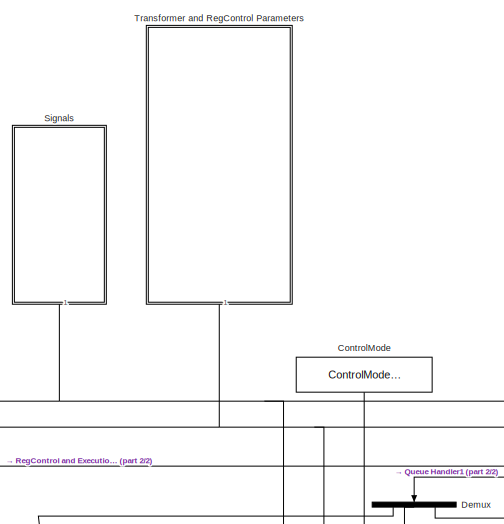
[diagram: root canvas - part 1/2, top left region]
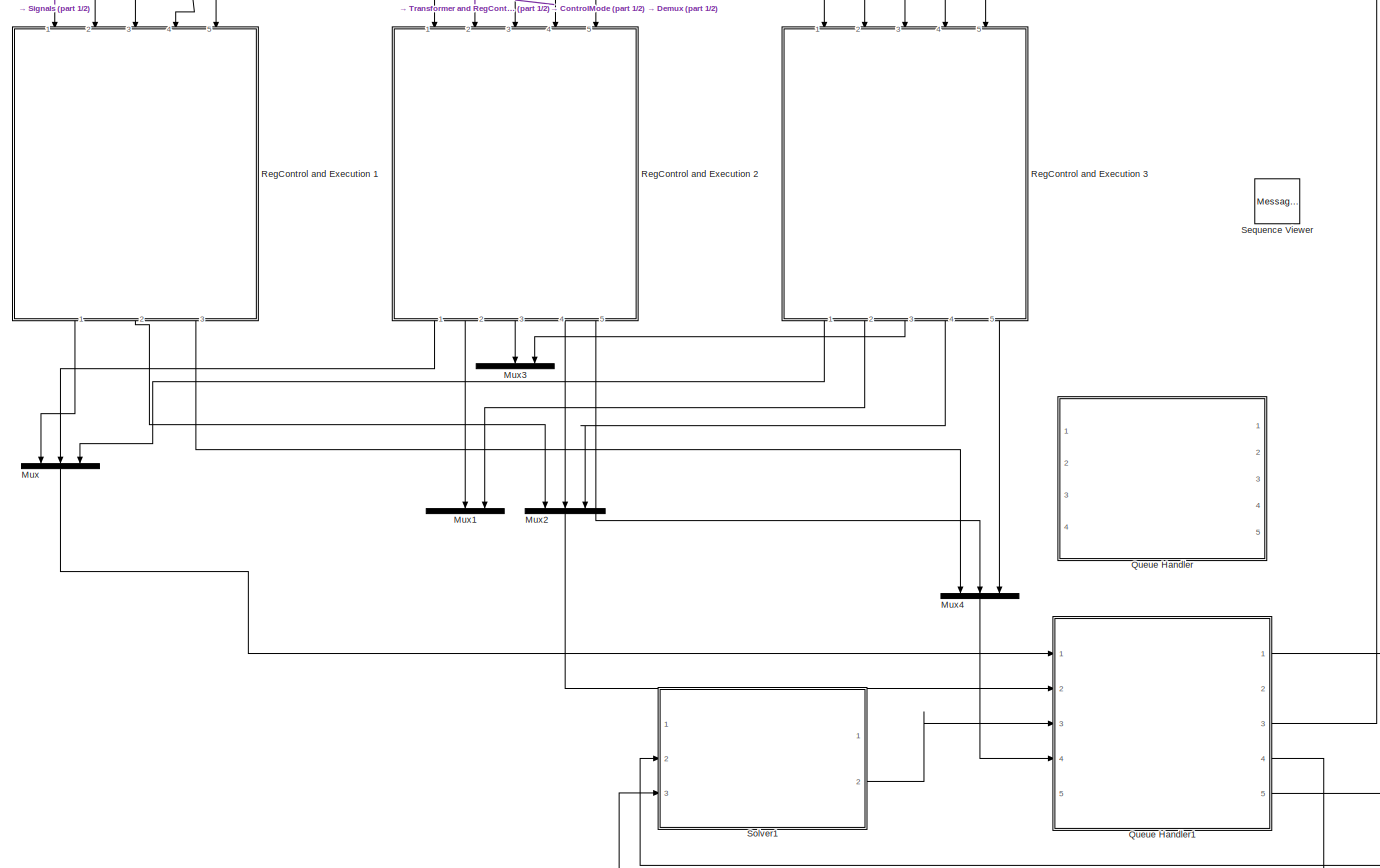
[diagram: root canvas - part 2/2, full width, bottom band]
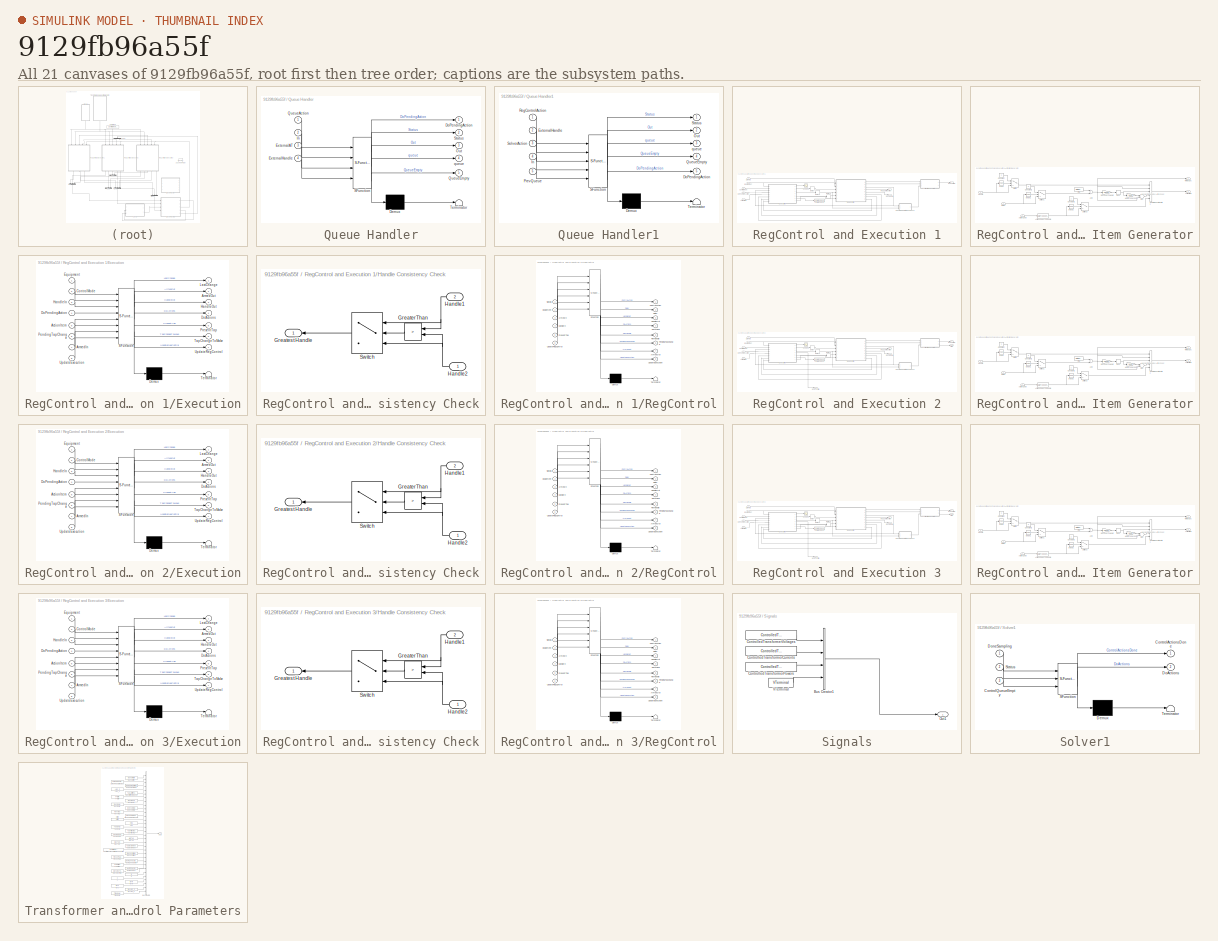
[diagram: thumbnail index - all 21 canvases of the model, root first then tree order]
MODEL slx_9129fb96a55f
KIND model
CONFIG AbsTol = auto
CONFIG EnableMultiTasking = off
CONFIG FixedStep = auto
CONFIG MaxStep = auto
CONFIG MinStep = auto
CONFIG RelTol = 1e-3
CONFIG SampleTimeConstraint = Unconstrained
CONFIG Solver = VariableStepAuto
CONFIG SolverName = VariableStepAuto
CONFIG StartTime = 0.0
CONFIG StopTime = 10.0
BLOCK [Constant] ControlMode
  OutDataTypeStr = Enum: ControlModes
  Value = ControlModes.STATIC
BLOCK [Demux] Demux
  DisplayOption = bar
  Outputs = 3
  Ports = [1, 3]
BLOCK [Mux] Mux
  DisplayOption = bar
  Inputs = 3
  Ports = [3, 1]
BLOCK [Mux] Mux1
  DisplayOption = bar
  Inputs = 3
  Ports = [3, 1]
BLOCK [Mux] Mux2
  DisplayOption = bar
  Inputs = 3
  Ports = [3, 1]
BLOCK [Mux] Mux3
  DisplayOption = bar
  Inputs = 3
  Ports = [3, 1]
BLOCK [Mux] Mux4
  DisplayOption = bar
  Inputs = 3
  Ports = [3, 1]
BLOCK [SubSystem] Queue Handler
  ErrorFcn = Stateflow.Translate.translate
  PermitHierarchicalResolution = ExplicitOnly
  Ports = [4, 5]
  RequestExecContextInheritance = off
  SFBlockType = Chart
  TreatAsAtomicUnit = on
BLOCK [Demux] Queue Handler/ Demux 
  Outputs = 1
  Ports = [1, 1]
BLOCK [S-Function] Queue Handler/ SFunction 
  EnableBusSupport = on
  FunctionName = sf_sfun
  InputPortMessageModes = m,n,n,n
  OutputPortMessageModes = n,m,m,n,n,m
  Parameters = 0,1,2,3,4,false,false;,true
  PortCounts = [4 6]
  Ports = [4, 6]
  SFcnIsStateOwnerBlock = off
  SFunctionDeploymentMode = off
  Tag = Stateflow S-Function regcontrol_model_3ph_old 5
BLOCK [Terminator] Queue Handler/ Terminator 
BLOCK [Outport] Queue Handler/DoPendingAction
  IconDisplay = Port number
BLOCK [Inport] Queue Handler/ExternalAT
  IconDisplay = Port number
  Port = 3
BLOCK [Inport] Queue Handler/ExternalHandle
  IconDisplay = Port number
  Port = 4
BLOCK [Inport] Queue Handler/In
  IconDisplay = Port number
  Port = 2
BLOCK [Outport] Queue Handler/Out
  IconDisplay = Port number
  Port = 3
BLOCK [Inport] Queue Handler/QueueAction
  IconDisplay = Port number
BLOCK [Outport] Queue Handler/QueueEmpty
  IconDisplay = Port number
  Port = 5
BLOCK [Outport] Queue Handler/Status
  IconDisplay = Port number
  Port = 2
BLOCK [Outport] Queue Handler/queue
  IconDisplay = Port number
  Port = 4
BLOCK [SubSystem] Queue Handler1
  ErrorFcn = Stateflow.Translate.translate
  PermitHierarchicalResolution = ExplicitOnly
  Ports = [5, 5]
  RequestExecContextInheritance = off
  SFBlockType = Chart
  TreatAsAtomicUnit = on
BLOCK [Demux] Queue Handler1/ Demux 
  Outputs = 1
  Ports = [1, 1]
BLOCK [S-Function] Queue Handler1/ SFunction 
  EnableBusSupport = on
  FunctionName = sf_sfun
  InputPortMessageModes = m,n,m,n,n
  OutputPortMessageModes = n,m,n,n,m,m
  Parameters = 0,1,2,false,false;,true
  PortCounts = [5 6]
  Ports = [5, 6]
  SFcnIsStateOwnerBlock = off
  SFunctionDeploymentMode = off
  Tag = Stateflow S-Function regcontrol_model_3ph_old 10
BLOCK [Terminator] Queue Handler1/ Terminator 
BLOCK [Outport] Queue Handler1/DoPendingAction
  IconDisplay = Port number
  Port = 5
BLOCK [Inport] Queue Handler1/ExternalHandle
  IconDisplay = Port number
  Port = 2
BLOCK [Inport] Queue Handler1/In
  IconDisplay = Port number
  Port = 4
BLOCK [Outport] Queue Handler1/Out
  IconDisplay = Port number
  Port = 2
BLOCK [Inport] Queue Handler1/PrevQueue
  IconDisplay = Port number
  Port = 5
BLOCK [Outport] Queue Handler1/QueueEmpty
  IconDisplay = Port number
  Port = 4
BLOCK [Inport] Queue Handler1/RegControlAction
  IconDisplay = Port number
BLOCK [Inport] Queue Handler1/SolverAction
  IconDisplay = Port number
  Port = 3
BLOCK [Outport] Queue Handler1/Status
  IconDisplay = Port number
BLOCK [Outport] Queue Handler1/queue
  IconDisplay = Port number
  Port = 3
BLOCK [SubSystem] RegControl and Execution 1
  Ports = [5, 3]
  RequestExecContextInheritance = off
BLOCK [Inport] RegControl and Execution 1/ActionItem
  IconDisplay = Port number
  Port = 5
BLOCK [SubSystem] RegControl and Execution 1/ActionItem Generator
  Ports = [3, 2]
  RequestExecContextInheritance = off
BLOCK [Inport] RegControl and Execution 1/ActionItem Generator/ActionCode
  IconDisplay = Port number
BLOCK [DataTypeConversion] RegControl and Execution 1/ActionItem Generator/ActionCodesToDouble
  OutDataTypeStr = double
  RndMeth = Floor
  SaturateOnIntegerOverflow = off
BLOCK [Outport] RegControl and Execution 1/ActionItem Generator/ActionItem
  IconDisplay = Port number
BLOCK [Sum] RegControl and Execution 1/ActionItem Generator/Add
  InputSameDT = off
  OutDataTypeStr = Inherit: Inherit via internal rule
  Ports = [2, 1]
  SaturateOnIntegerOverflow = off
BLOCK [Constant] RegControl and Execution 1/ActionItem Generator/Constant
BLOCK [Constant] RegControl and Execution 1/ActionItem Generator/Constant1
  Value = 0
BLOCK [Constant] RegControl and Execution 1/ActionItem Generator/Constant2
BLOCK [Inport] RegControl and Execution 1/ActionItem Generator/Delay
  IconDisplay = Port number
  Port = 2
BLOCK [Inport] RegControl and Execution 1/ActionItem Generator/Handle
  IconDisplay = Port number
  Port = 3
BLOCK [Rounding] RegControl and Execution 1/ActionItem Generator/Hour
BLOCK [Gain] RegControl and Execution 1/ActionItem Generator/HoursToSeconds
  Gain = 3600
  OutDataTypeStr = Inherit: Inherit via internal rule
  ParamDataTypeStr = Inherit: Inherit via internal rule
  SaturateOnIntegerOverflow = off
BLOCK [RelationalOperator] RegControl and Execution 1/ActionItem Generator/IsNaN
  InputSameDT = off
  Operator = isNaN
  OutDataTypeStr = boolean
  Ports = [1, 1]
  RndMeth = Simplest
BLOCK [RelationalOperator] RegControl and Execution 1/ActionItem Generator/IsNaN1
  InputSameDT = off
  Operator = isNaN
  OutDataTypeStr = boolean
  Ports = [1, 1]
  RndMeth = Simplest
BLOCK [RelationalOperator] RegControl and Execution 1/ActionItem Generator/IsNaN2
  InputSameDT = off
  Operator = isNaN
  OutDataTypeStr = boolean
  Ports = [1, 1]
  RndMeth = Simplest
BLOCK [Sum] RegControl and Execution 1/ActionItem Generator/Sec
  InputSameDT = off
  Inputs = -+
  OutDataTypeStr = Inherit: Inherit via internal rule
  Ports = [2, 1]
  SaturateOnIntegerOverflow = off
BLOCK [Gain] RegControl and Execution 1/ActionItem Generator/SecondsToHours
  Gain = 1/3600
  OutDataTypeStr = Inherit: Inherit via internal rule
  ParamDataTypeStr = Inherit: Inherit via internal rule
  SaturateOnIntegerOverflow = off
BLOCK [Switch] RegControl and Execution 1/ActionItem Generator/Switch
  Criteria = u2 ~= 0
  InputSameDT = off
  SaturateOnIntegerOverflow = off
BLOCK [Switch] RegControl and Execution 1/ActionItem Generator/Switch1
  Criteria = u2 ~= 0
  InputSameDT = off
  SaturateOnIntegerOverflow = off
BLOCK [Switch] RegControl and Execution 1/ActionItem Generator/Switch2
  Criteria = u2 ~= 0
  InputSameDT = off
  SaturateOnIntegerOverflow = off
BLOCK [DigitalClock] RegControl and Execution 1/ActionItem Generator/Time
BLOCK [Outport] RegControl and Execution 1/ActionItem Generator/TimeInSec
  IconDisplay = Port number
  Port = 2
BLOCK [Concatenate] RegControl and Execution 1/ActionItem Generator/Vector Concatenate1
  NumInputs = 5
  Ports = [5, 1]
BLOCK [Inport] RegControl and Execution 1/ControlMode
  IconDisplay = Port number
  Port = 3
BLOCK [Delay] RegControl and Execution 1/Delay
  DelayLength = 1
  InitialCondition = 0
  InputPortMap = u0
  Ports = [1, 1]
BLOCK [Delay] RegControl and Execution 1/Delay1
  DelayLength = 1
  InitialCondition = 0
  InputPortMap = u0
  Ports = [1, 1]
BLOCK [Delay] RegControl and Execution 1/Delay2
  DelayLength = 1
  InitialCondition = 0
  InputPortMap = u0
  Ports = [1, 1]
BLOCK [Inport] RegControl and Execution 1/DoPendingAction
  IconDisplay = Port number
  Port = 4
BLOCK [Inport] RegControl and Execution 1/Equipment
  IconDisplay = Port number
  Port = 2
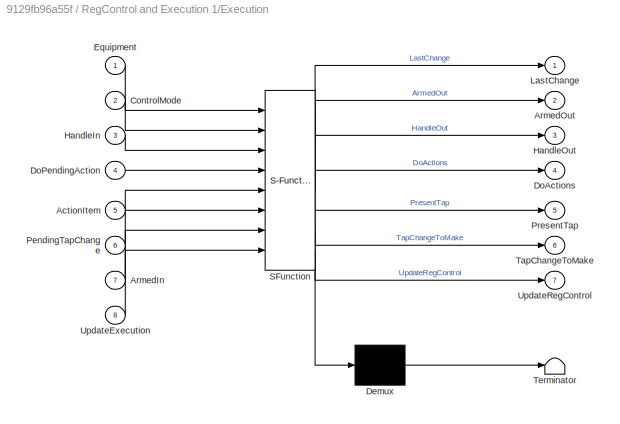
BLOCK [SubSystem] RegControl and Execution 1/Execution
  ErrorFcn = Stateflow.Translate.translate
  PermitHierarchicalResolution = ExplicitOnly
  Ports = [8, 7]
  RequestExecContextInheritance = off
  SFBlockType = Chart
  TreatAsAtomicUnit = on
BLOCK [Demux] RegControl and Execution 1/Execution/ Demux 
  Outputs = 1
  Ports = [1, 1]
BLOCK [S-Function] RegControl and Execution 1/Execution/ SFunction 
  EnableBusSupport = on
  FunctionName = sf_sfun
  InputPortMessageModes = n,n,n,m,n,n,n,m
  OutputPortMessageModes = n,n,n,n,m,n,n,m
  Parameters = 0,false,uint8(16)
  PortCounts = [8 8]
  Ports = [8, 8]
  SFcnIsStateOwnerBlock = off
  SFunctionDeploymentMode = off
  Tag = Stateflow S-Function regcontrol_model_3ph_old 1
BLOCK [Terminator] RegControl and Execution 1/Execution/ Terminator 
BLOCK [Inport] RegControl and Execution 1/Execution/ActionItem
  IconDisplay = Port number
  Port = 5
BLOCK [Inport] RegControl and Execution 1/Execution/ArmedIn
  IconDisplay = Port number
  Port = 7
BLOCK [Outport] RegControl and Execution 1/Execution/ArmedOut
  IconDisplay = Port number
  Port = 2
BLOCK [Inport] RegControl and Execution 1/Execution/ControlMode
  IconDisplay = Port number
  Port = 2
BLOCK [Outport] RegControl and Execution 1/Execution/DoActions
  IconDisplay = Port number
  Port = 4
BLOCK [Inport] RegControl and Execution 1/Execution/DoPendingAction
  IconDisplay = Port number
  Port = 4
BLOCK [Inport] RegControl and Execution 1/Execution/Equipment
  IconDisplay = Port number
BLOCK [Inport] RegControl and Execution 1/Execution/HandleIn
  IconDisplay = Port number
  Port = 3
BLOCK [Outport] RegControl and Execution 1/Execution/HandleOut
  IconDisplay = Port number
  Port = 3
BLOCK [Outport] RegControl and Execution 1/Execution/LastChange
  IconDisplay = Port number
BLOCK [Inport] RegControl and Execution 1/Execution/PendingTapChange
  IconDisplay = Port number
  Port = 6
BLOCK [Outport] RegControl and Execution 1/Execution/PresentTap
  IconDisplay = Port number
  Port = 5
BLOCK [Outport] RegControl and Execution 1/Execution/TapChangeToMake
  IconDisplay = Port number
  Port = 6
BLOCK [Inport] RegControl and Execution 1/Execution/UpdateExecution
  IconDisplay = Port number
  Port = 8
BLOCK [Outport] RegControl and Execution 1/Execution/UpdateRegControl
  IconDisplay = Port number
  Port = 7
BLOCK [SubSystem] RegControl and Execution 1/Handle Consistency Check
  Ports = [2, 1]
  RequestExecContextInheritance = off
BLOCK [RelationalOperator] RegControl and Execution 1/Handle Consistency Check/GreaterThan
  InputSameDT = off
  Operator = >
  Ports = [2, 1]
  RndMeth = Simplest
BLOCK [Outport] RegControl and Execution 1/Handle Consistency Check/Greatest Handle
  IconDisplay = Port number
BLOCK [Inport] RegControl and Execution 1/Handle Consistency Check/Handle1
  IconDisplay = Port number
  Port = 2
BLOCK [Inport] RegControl and Execution 1/Handle Consistency Check/Handle2
  IconDisplay = Port number
BLOCK [Switch] RegControl and Execution 1/Handle Consistency Check/Switch
  Criteria = u2 ~= 0
  InputSameDT = off
  OutDataTypeStr = double
  SaturateOnIntegerOverflow = off
BLOCK [Outport] RegControl and Execution 1/QueueItem
  IconDisplay = Port number
  OutDataTypeStr = double
  Port = 3
  PortDimensions = [5 1]
  VarSizeSig = No
BLOCK [SubSystem] RegControl and Execution 1/RegControl
  ErrorFcn = Stateflow.Translate.translate
  PermitHierarchicalResolution = ExplicitOnly
  Ports = [6, 8]
  RequestExecContextInheritance = off
  SFBlockType = Chart
  ShowPortLabels = SignalName
  TreatAsAtomicUnit = on
BLOCK [Demux] RegControl and Execution 1/RegControl/ Demux 
  Outputs = 1
  Ports = [1, 1]
BLOCK [S-Function] RegControl and Execution 1/RegControl/ SFunction 
  EnableBusSupport = on
  FunctionName = sf_sfun
  InputPortMessageModes = n,n,n,n,n,m
  OutputPortMessageModes = n,n,n,n,m,n,n,n,m
  Parameters = 0,1.0e-12,120,3,60,BaseVoltage,complex(0),double(0),false,uint8(0),uint8(1)
  PortCounts = [6 9]
  Ports = [6, 9]
  SFcnIsStateOwnerBlock = off
  SFunctionDeploymentMode = off
  Tag = Stateflow S-Function regcontrol_model_3ph_old 6
BLOCK [Terminator] RegControl and Execution 1/RegControl/ Terminator 
BLOCK [Inport] RegControl and Execution 1/RegControl/ArmedIn
  IconDisplay = Port number
  Port = 3
BLOCK [Outport] RegControl and Execution 1/RegControl/ArmedOut
  IconDisplay = Port number
  Port = 7
BLOCK [Outport] RegControl and Execution 1/RegControl/ControlAction
  IconDisplay = Port number
BLOCK [Outport] RegControl and Execution 1/RegControl/Delay
  IconDisplay = Port number
  Port = 2
BLOCK [Outport] RegControl and Execution 1/RegControl/DoActions
  IconDisplay = Port number
  Port = 4
BLOCK [Inport] RegControl and Execution 1/RegControl/Equipment
  IconDisplay = Port number
  Port = 2
BLOCK [Inport] RegControl and Execution 1/RegControl/HandleIn
  IconDisplay = Port number
  Port = 4
BLOCK [Outport] RegControl and Execution 1/RegControl/HandleOut
  IconDisplay = Port number
  Port = 3
BLOCK [Outport] RegControl and Execution 1/RegControl/PendingTapChange
  IconDisplay = Port number
  Port = 6
BLOCK [Inport] RegControl and Execution 1/RegControl/PresentTap
  IconDisplay = Port number
  Port = 5
BLOCK [Outport] RegControl and Execution 1/RegControl/RevHandle
  IconDisplay = Port number
  Port = 5
BLOCK [Inport] RegControl and Execution 1/RegControl/Signals
  IconDisplay = Port number
BLOCK [Outport] RegControl and Execution 1/RegControl/UpdateExecution
  IconDisplay = Port number
  Port = 8
BLOCK [Inport] RegControl and Execution 1/RegControl/UpdateRegControl
  IconDisplay = Port number
  Port = 6
BLOCK [Outport] RegControl and Execution 1/RegControlAction
  IconDisplay = Port number
  OutDataTypeStr = Enum: QueueActions
BLOCK [Outport] RegControl and Execution 1/RevHandle
  IconDisplay = Port number
  OutDataTypeStr = uint8
  Port = 2
BLOCK [Scope] RegControl and Execution 1/Scope3
  Floating = off
  NumInputPorts = 1
  Ports = [1]
  ScopeSpecificationString = Simulink.scopes.TimeScopeBlockCfg('CurrentConfiguration', extmgr.ConfigurationSet(extmgr.Configuration('Core','General UI',true),extmgr.Configuration('Core','Source UI',true),extmgr.Configuration('Sources','WiredSimulink',true,'DataLoggingVariableName','ScopeData1'),extmgr.Configuration('Visuals','Time Domain',true,'SerializedDisplays',{struct('MinYLimReal','-0.75','MaxYLimReal','6.75','YLabelReal...<+1414ch>  <repeated x3 — deduplicated; at blocks: Scope3>
BLOCK [Inport] RegControl and Execution 1/Signals
  IconDisplay = Port number
BLOCK [ToWorkspace] RegControl and Execution 1/To Workspace
  FixptAsFi = on
  MaxDataPoints = inf
  Ports = [1]
  SampleTime = -1
  Save2DSignal = 3-D array (concatenate along third dimension)
  SaveFormat = Timeseries
  VariableName = TapChangeToMake
BLOCK [SubSystem] RegControl and Execution 2
  Ports = [5, 5]
  RequestExecContextInheritance = off
BLOCK [Inport] RegControl and Execution 2/ActionItem
  IconDisplay = Port number
  Port = 5
BLOCK [SubSystem] RegControl and Execution 2/ActionItem Generator
  Ports = [3, 2]
  RequestExecContextInheritance = off
BLOCK [Inport] RegControl and Execution 2/ActionItem Generator/ActionCode
  IconDisplay = Port number
BLOCK [DataTypeConversion] RegControl and Execution 2/ActionItem Generator/ActionCodesToDouble
  OutDataTypeStr = double
  RndMeth = Floor
  SaturateOnIntegerOverflow = off
BLOCK [Outport] RegControl and Execution 2/ActionItem Generator/ActionItem
  IconDisplay = Port number
BLOCK [Sum] RegControl and Execution 2/ActionItem Generator/Add
  InputSameDT = off
  OutDataTypeStr = Inherit: Inherit via internal rule
  Ports = [2, 1]
  SaturateOnIntegerOverflow = off
BLOCK [Constant] RegControl and Execution 2/ActionItem Generator/Constant
BLOCK [Constant] RegControl and Execution 2/ActionItem Generator/Constant1
  Value = 0
BLOCK [Constant] RegControl and Execution 2/ActionItem Generator/Constant2
BLOCK [Inport] RegControl and Execution 2/ActionItem Generator/Delay
  IconDisplay = Port number
  Port = 2
BLOCK [Inport] RegControl and Execution 2/ActionItem Generator/Handle
  IconDisplay = Port number
  Port = 3
BLOCK [Rounding] RegControl and Execution 2/ActionItem Generator/Hour
BLOCK [Gain] RegControl and Execution 2/ActionItem Generator/HoursToSeconds
  Gain = 3600
  OutDataTypeStr = Inherit: Inherit via internal rule
  ParamDataTypeStr = Inherit: Inherit via internal rule
  SaturateOnIntegerOverflow = off
BLOCK [RelationalOperator] RegControl and Execution 2/ActionItem Generator/IsNaN
  InputSameDT = off
  Operator = isNaN
  OutDataTypeStr = boolean
  Ports = [1, 1]
  RndMeth = Simplest
BLOCK [RelationalOperator] RegControl and Execution 2/ActionItem Generator/IsNaN1
  InputSameDT = off
  Operator = isNaN
  OutDataTypeStr = boolean
  Ports = [1, 1]
  RndMeth = Simplest
BLOCK [RelationalOperator] RegControl and Execution 2/ActionItem Generator/IsNaN2
  InputSameDT = off
  Operator = isNaN
  OutDataTypeStr = boolean
  Ports = [1, 1]
  RndMeth = Simplest
BLOCK [Sum] RegControl and Execution 2/ActionItem Generator/Sec
  InputSameDT = off
  Inputs = -+
  OutDataTypeStr = Inherit: Inherit via internal rule
  Ports = [2, 1]
  SaturateOnIntegerOverflow = off
BLOCK [Gain] RegControl and Execution 2/ActionItem Generator/SecondsToHours
  Gain = 1/3600
  OutDataTypeStr = Inherit: Inherit via internal rule
  ParamDataTypeStr = Inherit: Inherit via internal rule
  SaturateOnIntegerOverflow = off
BLOCK [Switch] RegControl and Execution 2/ActionItem Generator/Switch
  Criteria = u2 ~= 0
  InputSameDT = off
  SaturateOnIntegerOverflow = off
BLOCK [Switch] RegControl and Execution 2/ActionItem Generator/Switch1
  Criteria = u2 ~= 0
  InputSameDT = off
  SaturateOnIntegerOverflow = off
BLOCK [Switch] RegControl and Execution 2/ActionItem Generator/Switch2
  Criteria = u2 ~= 0
  InputSameDT = off
  SaturateOnIntegerOverflow = off
BLOCK [DigitalClock] RegControl and Execution 2/ActionItem Generator/Time
BLOCK [Outport] RegControl and Execution 2/ActionItem Generator/TimeInSec
  IconDisplay = Port number
  Port = 2
BLOCK [Concatenate] RegControl and Execution 2/ActionItem Generator/Vector Concatenate1
  NumInputs = 5
  Ports = [5, 1]
BLOCK [Inport] RegControl and Execution 2/ControlMode
  IconDisplay = Port number
  Port = 3
BLOCK [Delay] RegControl and Execution 2/Delay
  DelayLength = 1
  InitialCondition = 0
  InputPortMap = u0
  Ports = [1, 1]
BLOCK [Delay] RegControl and Execution 2/Delay1
  DelayLength = 1
  InitialCondition = 0
  InputPortMap = u0
  Ports = [1, 1]
BLOCK [Delay] RegControl and Execution 2/Delay2
  DelayLength = 1
  InitialCondition = 0
  InputPortMap = u0
  Ports = [1, 1]
BLOCK [Inport] RegControl and Execution 2/DoPendingAction
  IconDisplay = Port number
  Port = 4
BLOCK [Inport] RegControl and Execution 2/Equipment
  IconDisplay = Port number
  Port = 2
BLOCK [Outport] RegControl and Execution 2/ExecAction
  IconDisplay = Port number
  OutDataTypeStr = Enum: QueueActions
  Port = 2
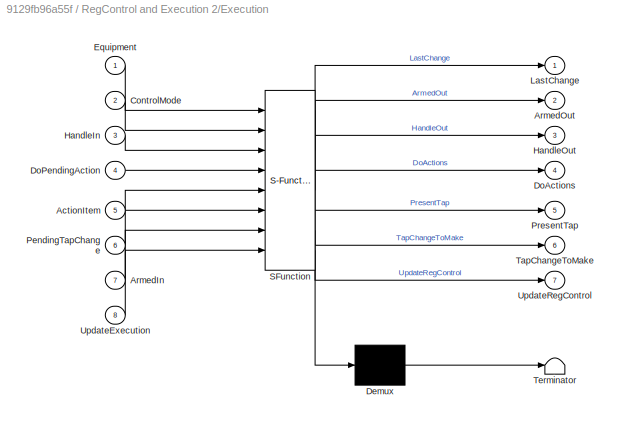
BLOCK [SubSystem] RegControl and Execution 2/Execution
  ErrorFcn = Stateflow.Translate.translate
  PermitHierarchicalResolution = ExplicitOnly
  Ports = [8, 7]
  RequestExecContextInheritance = off
  SFBlockType = Chart
  TreatAsAtomicUnit = on
BLOCK [Demux] RegControl and Execution 2/Execution/ Demux 
  Outputs = 1
  Ports = [1, 1]
BLOCK [S-Function] RegControl and Execution 2/Execution/ SFunction 
  EnableBusSupport = on
  FunctionName = sf_sfun
  InputPortMessageModes = n,n,n,m,n,n,n,m
  OutputPortMessageModes = n,n,n,n,m,n,n,m
  Parameters = 0,false,uint8(16)
  PortCounts = [8 8]
  Ports = [8, 8]
  SFcnIsStateOwnerBlock = off
  SFunctionDeploymentMode = off
  Tag = Stateflow S-Function regcontrol_model_3ph_old 3
BLOCK [Terminator] RegControl and Execution 2/Execution/ Terminator 
BLOCK [Inport] RegControl and Execution 2/Execution/ActionItem
  IconDisplay = Port number
  Port = 5
BLOCK [Inport] RegControl and Execution 2/Execution/ArmedIn
  IconDisplay = Port number
  Port = 7
BLOCK [Outport] RegControl and Execution 2/Execution/ArmedOut
  IconDisplay = Port number
  Port = 2
BLOCK [Inport] RegControl and Execution 2/Execution/ControlMode
  IconDisplay = Port number
  Port = 2
BLOCK [Outport] RegControl and Execution 2/Execution/DoActions
  IconDisplay = Port number
  Port = 4
BLOCK [Inport] RegControl and Execution 2/Execution/DoPendingAction
  IconDisplay = Port number
  Port = 4
BLOCK [Inport] RegControl and Execution 2/Execution/Equipment
  IconDisplay = Port number
BLOCK [Inport] RegControl and Execution 2/Execution/HandleIn
  IconDisplay = Port number
  Port = 3
BLOCK [Outport] RegControl and Execution 2/Execution/HandleOut
  IconDisplay = Port number
  Port = 3
BLOCK [Outport] RegControl and Execution 2/Execution/LastChange
  IconDisplay = Port number
BLOCK [Inport] RegControl and Execution 2/Execution/PendingTapChange
  IconDisplay = Port number
  Port = 6
BLOCK [Outport] RegControl and Execution 2/Execution/PresentTap
  IconDisplay = Port number
  Port = 5
BLOCK [Outport] RegControl and Execution 2/Execution/TapChangeToMake
  IconDisplay = Port number
  Port = 6
BLOCK [Inport] RegControl and Execution 2/Execution/UpdateExecution
  IconDisplay = Port number
  Port = 8
BLOCK [Outport] RegControl and Execution 2/Execution/UpdateRegControl
  IconDisplay = Port number
  Port = 7
BLOCK [SubSystem] RegControl and Execution 2/Handle Consistency Check
  Ports = [2, 1]
  RequestExecContextInheritance = off
BLOCK [RelationalOperator] RegControl and Execution 2/Handle Consistency Check/GreaterThan
  InputSameDT = off
  Operator = >
  Ports = [2, 1]
  RndMeth = Simplest
BLOCK [Outport] RegControl and Execution 2/Handle Consistency Check/Greatest Handle
  IconDisplay = Port number
BLOCK [Inport] RegControl and Execution 2/Handle Consistency Check/Handle1
  IconDisplay = Port number
  Port = 2
BLOCK [Inport] RegControl and Execution 2/Handle Consistency Check/Handle2
  IconDisplay = Port number
BLOCK [Switch] RegControl and Execution 2/Handle Consistency Check/Switch
  Criteria = u2 ~= 0
  InputSameDT = off
  OutDataTypeStr = double
  SaturateOnIntegerOverflow = off
BLOCK [Outport] RegControl and Execution 2/QueueItem
  IconDisplay = Port number
  Port = 5
  PortDimensions = [5 1]
  VarSizeSig = No
BLOCK [SubSystem] RegControl and Execution 2/RegControl
  ErrorFcn = Stateflow.Translate.translate
  PermitHierarchicalResolution = ExplicitOnly
  Ports = [6, 8]
  RequestExecContextInheritance = off
  SFBlockType = Chart
  ShowPortLabels = SignalName
  TreatAsAtomicUnit = on
BLOCK [Demux] RegControl and Execution 2/RegControl/ Demux 
  Outputs = 1
  Ports = [1, 1]
BLOCK [S-Function] RegControl and Execution 2/RegControl/ SFunction 
  EnableBusSupport = on
  FunctionName = sf_sfun
  InputPortMessageModes = n,n,n,n,n,m
  OutputPortMessageModes = n,n,n,n,m,n,n,n,m
  Parameters = 0,1.0e-12,120,3,60,BaseVoltage,complex(0),double(0),false,uint8(0),uint8(1)
  PortCounts = [6 9]
  Ports = [6, 9]
  SFcnIsStateOwnerBlock = off
  SFunctionDeploymentMode = off
  Tag = Stateflow S-Function regcontrol_model_3ph_old 7
BLOCK [Terminator] RegControl and Execution 2/RegControl/ Terminator 
BLOCK [Inport] RegControl and Execution 2/RegControl/ArmedIn
  IconDisplay = Port number
  Port = 3
BLOCK [Outport] RegControl and Execution 2/RegControl/ArmedOut
  IconDisplay = Port number
  Port = 7
BLOCK [Outport] RegControl and Execution 2/RegControl/ControlAction
  IconDisplay = Port number
BLOCK [Outport] RegControl and Execution 2/RegControl/Delay
  IconDisplay = Port number
  Port = 2
BLOCK [Outport] RegControl and Execution 2/RegControl/DoActions
  IconDisplay = Port number
  Port = 4
BLOCK [Inport] RegControl and Execution 2/RegControl/Equipment
  IconDisplay = Port number
  Port = 2
BLOCK [Inport] RegControl and Execution 2/RegControl/HandleIn
  IconDisplay = Port number
  Port = 4
BLOCK [Outport] RegControl and Execution 2/RegControl/HandleOut
  IconDisplay = Port number
  Port = 3
BLOCK [Outport] RegControl and Execution 2/RegControl/PendingTapChange
  IconDisplay = Port number
  Port = 6
BLOCK [Inport] RegControl and Execution 2/RegControl/PresentTap
  IconDisplay = Port number
  Port = 5
BLOCK [Outport] RegControl and Execution 2/RegControl/RevHandle
  IconDisplay = Port number
  Port = 5
BLOCK [Inport] RegControl and Execution 2/RegControl/Signals
  IconDisplay = Port number
BLOCK [Outport] RegControl and Execution 2/RegControl/UpdateExecution
  IconDisplay = Port number
  Port = 8
BLOCK [Inport] RegControl and Execution 2/RegControl/UpdateRegControl
  IconDisplay = Port number
  Port = 6
BLOCK [Outport] RegControl and Execution 2/RegControlAction
  IconDisplay = Port number
  OutDataTypeStr = Enum: QueueActions
BLOCK [Outport] RegControl and Execution 2/RevHandle
  IconDisplay = Port number
  OutDataTypeStr = uint8
  Port = 4
BLOCK [Scope] RegControl and Execution 2/Scope3
  Floating = off
  NumInputPorts = 1
  Ports = [1]
BLOCK [Inport] RegControl and Execution 2/Signals
  IconDisplay = Port number
BLOCK [Outport] RegControl and Execution 2/Time
  IconDisplay = Port number
  Port = 3
BLOCK [ToWorkspace] RegControl and Execution 2/To Workspace
  FixptAsFi = on
  MaxDataPoints = inf
  Ports = [1]
  SampleTime = -1
  Save2DSignal = 3-D array (concatenate along third dimension)
  SaveFormat = Timeseries
  VariableName = TapChangeToMake
BLOCK [SubSystem] RegControl and Execution 3
  Ports = [5, 5]
  RequestExecContextInheritance = off
BLOCK [Inport] RegControl and Execution 3/ActionItem
  IconDisplay = Port number
  Port = 5
BLOCK [SubSystem] RegControl and Execution 3/ActionItem Generator
  Ports = [3, 2]
  RequestExecContextInheritance = off
BLOCK [Inport] RegControl and Execution 3/ActionItem Generator/ActionCode
  IconDisplay = Port number
BLOCK [DataTypeConversion] RegControl and Execution 3/ActionItem Generator/ActionCodesToDouble
  OutDataTypeStr = double
  RndMeth = Floor
  SaturateOnIntegerOverflow = off
BLOCK [Outport] RegControl and Execution 3/ActionItem Generator/ActionItem
  IconDisplay = Port number
BLOCK [Sum] RegControl and Execution 3/ActionItem Generator/Add
  InputSameDT = off
  OutDataTypeStr = Inherit: Inherit via internal rule
  Ports = [2, 1]
  SaturateOnIntegerOverflow = off
BLOCK [Constant] RegControl and Execution 3/ActionItem Generator/Constant
BLOCK [Constant] RegControl and Execution 3/ActionItem Generator/Constant1
  Value = 0
BLOCK [Constant] RegControl and Execution 3/ActionItem Generator/Constant2
BLOCK [Inport] RegControl and Execution 3/ActionItem Generator/Delay
  IconDisplay = Port number
  Port = 2
BLOCK [Inport] RegControl and Execution 3/ActionItem Generator/Handle
  IconDisplay = Port number
  Port = 3
BLOCK [Rounding] RegControl and Execution 3/ActionItem Generator/Hour
BLOCK [Gain] RegControl and Execution 3/ActionItem Generator/HoursToSeconds
  Gain = 3600
  OutDataTypeStr = Inherit: Inherit via internal rule
  ParamDataTypeStr = Inherit: Inherit via internal rule
  SaturateOnIntegerOverflow = off
BLOCK [RelationalOperator] RegControl and Execution 3/ActionItem Generator/IsNaN
  InputSameDT = off
  Operator = isNaN
  OutDataTypeStr = boolean
  Ports = [1, 1]
  RndMeth = Simplest
BLOCK [RelationalOperator] RegControl and Execution 3/ActionItem Generator/IsNaN1
  InputSameDT = off
  Operator = isNaN
  OutDataTypeStr = boolean
  Ports = [1, 1]
  RndMeth = Simplest
BLOCK [RelationalOperator] RegControl and Execution 3/ActionItem Generator/IsNaN2
  InputSameDT = off
  Operator = isNaN
  OutDataTypeStr = boolean
  Ports = [1, 1]
  RndMeth = Simplest
BLOCK [Sum] RegControl and Execution 3/ActionItem Generator/Sec
  InputSameDT = off
  Inputs = -+
  OutDataTypeStr = Inherit: Inherit via internal rule
  Ports = [2, 1]
  SaturateOnIntegerOverflow = off
BLOCK [Gain] RegControl and Execution 3/ActionItem Generator/SecondsToHours
  Gain = 1/3600
  OutDataTypeStr = Inherit: Inherit via internal rule
  ParamDataTypeStr = Inherit: Inherit via internal rule
  SaturateOnIntegerOverflow = off
BLOCK [Switch] RegControl and Execution 3/ActionItem Generator/Switch
  Criteria = u2 ~= 0
  InputSameDT = off
  SaturateOnIntegerOverflow = off
BLOCK [Switch] RegControl and Execution 3/ActionItem Generator/Switch1
  Criteria = u2 ~= 0
  InputSameDT = off
  SaturateOnIntegerOverflow = off
BLOCK [Switch] RegControl and Execution 3/ActionItem Generator/Switch2
  Criteria = u2 ~= 0
  InputSameDT = off
  SaturateOnIntegerOverflow = off
BLOCK [DigitalClock] RegControl and Execution 3/ActionItem Generator/Time
BLOCK [Outport] RegControl and Execution 3/ActionItem Generator/TimeInSec
  IconDisplay = Port number
  Port = 2
BLOCK [Concatenate] RegControl and Execution 3/ActionItem Generator/Vector Concatenate1
  NumInputs = 5
  Ports = [5, 1]
BLOCK [Inport] RegControl and Execution 3/ControlMode
  IconDisplay = Port number
  Port = 3
BLOCK [Delay] RegControl and Execution 3/Delay
  DelayLength = 1
  InitialCondition = 0
  InputPortMap = u0
  Ports = [1, 1]
BLOCK [Delay] RegControl and Execution 3/Delay1
  DelayLength = 1
  InitialCondition = 0
  InputPortMap = u0
  Ports = [1, 1]
BLOCK [Delay] RegControl and Execution 3/Delay2
  DelayLength = 1
  InitialCondition = 0
  InputPortMap = u0
  Ports = [1, 1]
BLOCK [Inport] RegControl and Execution 3/DoPendingAction
  IconDisplay = Port number
  Port = 4
BLOCK [Inport] RegControl and Execution 3/Equipment
  IconDisplay = Port number
  Port = 2
BLOCK [Outport] RegControl and Execution 3/ExecAction
  IconDisplay = Port number
  OutDataTypeStr = Enum: QueueActions
  Port = 2
BLOCK [SubSystem] RegControl and Execution 3/Execution
  ErrorFcn = Stateflow.Translate.translate
  PermitHierarchicalResolution = ExplicitOnly
  Ports = [8, 7]
  RequestExecContextInheritance = off
  SFBlockType = Chart
  TreatAsAtomicUnit = on
BLOCK [Demux] RegControl and Execution 3/Execution/ Demux 
  Outputs = 1
  Ports = [1, 1]
BLOCK [S-Function] RegControl and Execution 3/Execution/ SFunction 
  EnableBusSupport = on
  FunctionName = sf_sfun
  InputPortMessageModes = n,n,n,m,n,n,n,m
  OutputPortMessageModes = n,n,n,n,m,n,n,m
  Parameters = 0,false,uint8(16)
  PortCounts = [8 8]
  Ports = [8, 8]
  SFcnIsStateOwnerBlock = off
  SFunctionDeploymentMode = off
  Tag = Stateflow S-Function regcontrol_model_3ph_old 8
BLOCK [Terminator] RegControl and Execution 3/Execution/ Terminator 
BLOCK [Inport] RegControl and Execution 3/Execution/ActionItem
  IconDisplay = Port number
  Port = 5
BLOCK [Inport] RegControl and Execution 3/Execution/ArmedIn
  IconDisplay = Port number
  Port = 7
BLOCK [Outport] RegControl and Execution 3/Execution/ArmedOut
  IconDisplay = Port number
  Port = 2
BLOCK [Inport] RegControl and Execution 3/Execution/ControlMode
  IconDisplay = Port number
  Port = 2
BLOCK [Outport] RegControl and Execution 3/Execution/DoActions
  IconDisplay = Port number
  Port = 4
BLOCK [Inport] RegControl and Execution 3/Execution/DoPendingAction
  IconDisplay = Port number
  Port = 4
BLOCK [Inport] RegControl and Execution 3/Execution/Equipment
  IconDisplay = Port number
BLOCK [Inport] RegControl and Execution 3/Execution/HandleIn
  IconDisplay = Port number
  Port = 3
BLOCK [Outport] RegControl and Execution 3/Execution/HandleOut
  IconDisplay = Port number
  Port = 3
BLOCK [Outport] RegControl and Execution 3/Execution/LastChange
  IconDisplay = Port number
BLOCK [Inport] RegControl and Execution 3/Execution/PendingTapChange
  IconDisplay = Port number
  Port = 6
BLOCK [Outport] RegControl and Execution 3/Execution/PresentTap
  IconDisplay = Port number
  Port = 5
BLOCK [Outport] RegControl and Execution 3/Execution/TapChangeToMake
  IconDisplay = Port number
  Port = 6
BLOCK [Inport] RegControl and Execution 3/Execution/UpdateExecution
  IconDisplay = Port number
  Port = 8
BLOCK [Outport] RegControl and Execution 3/Execution/UpdateRegControl
  IconDisplay = Port number
  Port = 7
BLOCK [SubSystem] RegControl and Execution 3/Handle Consistency Check
  Ports = [2, 1]
  RequestExecContextInheritance = off
BLOCK [RelationalOperator] RegControl and Execution 3/Handle Consistency Check/GreaterThan
  InputSameDT = off
  Operator = >
  Ports = [2, 1]
  RndMeth = Simplest
BLOCK [Outport] RegControl and Execution 3/Handle Consistency Check/Greatest Handle
  IconDisplay = Port number
BLOCK [Inport] RegControl and Execution 3/Handle Consistency Check/Handle1
  IconDisplay = Port number
  Port = 2
BLOCK [Inport] RegControl and Execution 3/Handle Consistency Check/Handle2
  IconDisplay = Port number
BLOCK [Switch] RegControl and Execution 3/Handle Consistency Check/Switch
  Criteria = u2 ~= 0
  InputSameDT = off
  OutDataTypeStr = double
  SaturateOnIntegerOverflow = off
BLOCK [Outport] RegControl and Execution 3/QueueItem
  IconDisplay = Port number
  OutDataTypeStr = double
  Port = 5
  PortDimensions = [5 1]
  VarSizeSig = No
BLOCK [SubSystem] RegControl and Execution 3/RegControl
  ErrorFcn = Stateflow.Translate.translate
  PermitHierarchicalResolution = ExplicitOnly
  Ports = [6, 8]
  RequestExecContextInheritance = off
  SFBlockType = Chart
  ShowPortLabels = SignalName
  TreatAsAtomicUnit = on
BLOCK [Demux] RegControl and Execution 3/RegControl/ Demux 
  Outputs = 1
  Ports = [1, 1]
BLOCK [S-Function] RegControl and Execution 3/RegControl/ SFunction 
  EnableBusSupport = on
  FunctionName = sf_sfun
  InputPortMessageModes = n,n,n,n,n,m
  OutputPortMessageModes = n,n,n,n,m,n,n,n,m
  Parameters = 0,1.0e-12,120,3,60,BaseVoltage,complex(0),double(0),false,uint8(0),uint8(1)
  PortCounts = [6 9]
  Ports = [6, 9]
  SFcnIsStateOwnerBlock = off
  SFunctionDeploymentMode = off
  Tag = Stateflow S-Function regcontrol_model_3ph_old 9
BLOCK [Terminator] RegControl and Execution 3/RegControl/ Terminator 
BLOCK [Inport] RegControl and Execution 3/RegControl/ArmedIn
  IconDisplay = Port number
  Port = 3
BLOCK [Outport] RegControl and Execution 3/RegControl/ArmedOut
  IconDisplay = Port number
  Port = 7
BLOCK [Outport] RegControl and Execution 3/RegControl/ControlAction
  IconDisplay = Port number
BLOCK [Outport] RegControl and Execution 3/RegControl/Delay
  IconDisplay = Port number
  Port = 2
BLOCK [Outport] RegControl and Execution 3/RegControl/DoActions
  IconDisplay = Port number
  Port = 4
BLOCK [Inport] RegControl and Execution 3/RegControl/Equipment
  IconDisplay = Port number
  Port = 2
BLOCK [Inport] RegControl and Execution 3/RegControl/HandleIn
  IconDisplay = Port number
  Port = 4
BLOCK [Outport] RegControl and Execution 3/RegControl/HandleOut
  IconDisplay = Port number
  Port = 3
BLOCK [Outport] RegControl and Execution 3/RegControl/PendingTapChange
  IconDisplay = Port number
  Port = 6
BLOCK [Inport] RegControl and Execution 3/RegControl/PresentTap
  IconDisplay = Port number
  Port = 5
BLOCK [Outport] RegControl and Execution 3/RegControl/RevHandle
  IconDisplay = Port number
  Port = 5
BLOCK [Inport] RegControl and Execution 3/RegControl/Signals
  IconDisplay = Port number
BLOCK [Outport] RegControl and Execution 3/RegControl/UpdateExecution
  IconDisplay = Port number
  Port = 8
BLOCK [Inport] RegControl and Execution 3/RegControl/UpdateRegControl
  IconDisplay = Port number
  Port = 6
BLOCK [Outport] RegControl and Execution 3/RegControlAction
  IconDisplay = Port number
  OutDataTypeStr = Enum: QueueActions
BLOCK [Outport] RegControl and Execution 3/RevHandle
  IconDisplay = Port number
  OutDataTypeStr = uint8
  Port = 4
BLOCK [Scope] RegControl and Execution 3/Scope3
  Floating = off
  NumInputPorts = 1
  Ports = [1]
BLOCK [Inport] RegControl and Execution 3/Signals
  IconDisplay = Port number
BLOCK [Outport] RegControl and Execution 3/Time
  IconDisplay = Port number
  Port = 3
BLOCK [ToWorkspace] RegControl and Execution 3/To Workspace
  FixptAsFi = on
  MaxDataPoints = inf
  Ports = [1]
  SampleTime = -1
  Save2DSignal = 3-D array (concatenate along third dimension)
  SaveFormat = Timeseries
  VariableName = TapChangeToMake
BLOCK [MessageViewer] Sequence Viewer
BLOCK [SubSystem] Signals
  Ports = [0, 1]
  RequestExecContextInheritance = off
BLOCK [BusCreator] Signals/Bus Creator1
  DisplayOption = bar
  InheritFromInputs = off
  Inputs = 4
  OutDataTypeStr = Bus: SignalBus
  Ports = [4, 1]
BLOCK [Constant] Signals/ControlledTransformerCurrents
  Value = ControlledTransformerCurrents
BLOCK [Constant] Signals/ControlledTransformerPowers
  Value = ControlledTransformerPowers
BLOCK [Constant] Signals/ControlledTransformerVoltages
  Value = ControlledTransformerVoltages
BLOCK [Outport] Signals/Out1
  IconDisplay = Port number
BLOCK [Constant] Signals/VTerminal
  Value = VTerminal
BLOCK [SubSystem] Solver1
  ErrorFcn = Stateflow.Translate.translate
  PermitHierarchicalResolution = ExplicitOnly
  Ports = [3, 2]
  RequestExecContextInheritance = off
  SFBlockType = Chart
  TreatAsAtomicUnit = on
BLOCK [Demux] Solver1/ Demux 
  Outputs = 1
  Ports = [1, 1]
BLOCK [S-Function] Solver1/ SFunction 
  EnableBusSupport = on
  FunctionName = sf_sfun
  InputPortMessageModes = m,m,m
  OutputPortMessageModes = n,n,m
  Parameters = false
  PortCounts = [3 3]
  Ports = [3, 3]
  SFcnIsStateOwnerBlock = off
  SFunctionDeploymentMode = off
  Tag = Stateflow S-Function regcontrol_model_3ph_old 11
BLOCK [Terminator] Solver1/ Terminator 
BLOCK [Outport] Solver1/ControlActionsDone
  IconDisplay = Port number
BLOCK [Inport] Solver1/ControlQueueEmpty
  IconDisplay = Port number
  Port = 3
BLOCK [Outport] Solver1/DoActions
  IconDisplay = Port number
  Port = 2
BLOCK [Inport] Solver1/DoneSampling
  IconDisplay = Port number
BLOCK [Inport] Solver1/Status
  IconDisplay = Port number
  Port = 2
BLOCK [SubSystem] Transformer and RegControl Parameters
  Ports = [0, 1]
  RequestExecContextInheritance = off
BLOCK [Constant] Transformer and RegControl Parameters/BandWidth
  Value = BandWidth
BLOCK [Constant] Transformer and RegControl Parameters/BaseVoltage
  Value = BaseVoltage
BLOCK [BusCreator] Transformer and RegControl Parameters/Bus Creator2
  DisplayOption = bar
  InheritFromInputs = off
  Inputs = 32
  OutDataTypeStr = Bus: EquipmentBus
  Ports = [32, 1]
BLOCK [Constant] Transformer and RegControl Parameters/CTRating
  Value = CTRating
BLOCK [Constant] Transformer and RegControl Parameters/CogenEnabled
  Value = CogenEnabled
BLOCK [Constant] Transformer and RegControl Parameters/ControlledTransformerConnection
  Value = ControlledTransformerConnection
BLOCK [Constant] Transformer and RegControl Parameters/FPTphase
  Value = FPTphase
BLOCK [Constant] Transformer and RegControl Parameters/IsInverseTime
  Value = IsInverseTime
BLOCK [Constant] Transformer and RegControl Parameters/IsReversible
  Value = IsReversible
BLOCK [Constant] Transformer and RegControl Parameters/LDC_Z
  Value = LDC_Z
BLOCK [Constant] Transformer and RegControl Parameters/MaxTap
  Value = MaxTap
BLOCK [Constant] Transformer and RegControl Parameters/MinTap
  Value = MinTap
BLOCK [Constant] Transformer and RegControl Parameters/NumConductors
  Value = NumConductors
BLOCK [Constant] Transformer and RegControl Parameters/NumPhases
  Value = NumPhases
BLOCK [Outport] Transformer and RegControl Parameters/Out1
  IconDisplay = Port number
BLOCK [Constant] Transformer and RegControl Parameters/PTratio
  Value = PTratio
BLOCK [Constant] Transformer and RegControl Parameters/PresentTap
  Value = PresentTap
BLOCK [Constant] Transformer and RegControl Parameters/R
  Value = R
BLOCK [Constant] Transformer and RegControl Parameters/RevBand
  Value = RevBand
BLOCK [Constant] Transformer and RegControl Parameters/RevDelay
  Value = RevDelay
BLOCK [Constant] Transformer and RegControl Parameters/RevPowerThreshold
  Value = RevPowerThreshold
BLOCK [Constant] Transformer and RegControl Parameters/RevVreg
  Value = RevVreg
BLOCK [Constant] Transformer and RegControl Parameters/TapDelay
  Value = TapDelay
BLOCK [Constant] Transformer and RegControl Parameters/TapIncrement
  Value = TapIncrement
BLOCK [Constant] Transformer and RegControl Parameters/TapLimitPerChange
  Value = TapLimitPerChange
BLOCK [Constant] Transformer and RegControl Parameters/TapWinding
  Value = TapWinding
BLOCK [Constant] Transformer and RegControl Parameters/TimeDelay
  Value = TimeDelay
BLOCK [Constant] Transformer and RegControl Parameters/UsingRegulatedBus
  Value = UsingRegulatedBus
BLOCK [Constant] Transformer and RegControl Parameters/Vlimit
  Value = Vlimit
BLOCK [Constant] Transformer and RegControl Parameters/Vreg
  Value = Vreg
BLOCK [Constant] Transformer and RegControl Parameters/X
  Value = X
BLOCK [Constant] Transformer and RegControl Parameters/revLDC_Z
  Value = revLDC_Z
BLOCK [Constant] Transformer and RegControl Parameters/revR
  Value = revR
BLOCK [Constant] Transformer and RegControl Parameters/revX
  Value = revX
ANNOTATION RegControl and Execution 1/ActionItem Generator: [Handle Time Hour Sec ActionCode]'
ANNOTATION RegControl and Execution 2/ActionItem Generator: [Handle Time Hour Sec ActionCode]'
ANNOTATION RegControl and Execution 3/ActionItem Generator: [Handle Time Hour Sec ActionCode]'
NET ControlMode:1 -> RegControl and Execution 1:3, RegControl and Execution 2:3, RegControl and Execution 3:3
LINE Demux:1 -> RegControl and Execution 1:4
LINE Demux:2 -> RegControl and Execution 2:4
LINE Demux:3 -> RegControl and Execution 3:4
LINE Mux2:1 -> Queue Handler1:2
LINE Mux4:1 -> Queue Handler1:4
LINE Mux:1 -> Queue Handler1:1
LINE Queue Handler1:1 -> Solver1:2
NET Queue Handler1:3 -> RegControl and Execution 1:5, RegControl and Execution 2:5, RegControl and Execution 3:5
LINE Queue Handler1:4 -> Solver1:3
LINE Queue Handler1:5 -> Demux:1
LINE RegControl and Execution 1/ActionItem Generator/ActionCode:1 -> RegControl and Execution 1/ActionItem Generator/ActionCodesToDouble:1
NET RegControl and Execution 1/ActionItem Generator/ActionCodesToDouble:1 -> RegControl and Execution 1/ActionItem Generator/IsNaN2:1, RegControl and Execution 1/ActionItem Generator/Switch2:3
NET RegControl and Execution 1/ActionItem Generator/Add:1 -> RegControl and Execution 1/ActionItem Generator/Sec:2, RegControl and Execution 1/ActionItem Generator/SecondsToHours:1, RegControl and Execution 1/ActionItem Generator/TimeInSec:1, RegControl and Execution 1/ActionItem Generator/Vector Concatenate1:2
LINE RegControl and Execution 1/ActionItem Generator/Constant1:1 -> RegControl and Execution 1/ActionItem Generator/Switch1:1
LINE RegControl and Execution 1/ActionItem Generator/Constant2:1 -> RegControl and Execution 1/ActionItem Generator/Switch2:1
LINE RegControl and Execution 1/ActionItem Generator/Constant:1 -> RegControl and Execution 1/ActionItem Generator/Switch:1
NET RegControl and Execution 1/ActionItem Generator/Delay:1 -> RegControl and Execution 1/ActionItem Generator/IsNaN1:1, RegControl and Execution 1/ActionItem Generator/Switch1:3
NET RegControl and Execution 1/ActionItem Generator/Handle:1 -> RegControl and Execution 1/ActionItem Generator/IsNaN:1, RegControl and Execution 1/ActionItem Generator/Switch:3
NET RegControl and Execution 1/ActionItem Generator/Hour:1 -> RegControl and Execution 1/ActionItem Generator/HoursToSeconds:1, RegControl and Execution 1/ActionItem Generator/Vector Concatenate1:3
LINE RegControl and Execution 1/ActionItem Generator/HoursToSeconds:1 -> RegControl and Execution 1/ActionItem Generator/Sec:1
LINE RegControl and Execution 1/ActionItem Generator/IsNaN1:1 -> RegControl and Execution 1/ActionItem Generator/Switch1:2
LINE RegControl and Execution 1/ActionItem Generator/IsNaN2:1 -> RegControl and Execution 1/ActionItem Generator/Switch2:2
LINE RegControl and Execution 1/ActionItem Generator/IsNaN:1 -> RegControl and Execution 1/ActionItem Generator/Switch:2
LINE RegControl and Execution 1/ActionItem Generator/Sec:1 -> RegControl and Execution 1/ActionItem Generator/Vector Concatenate1:4
LINE RegControl and Execution 1/ActionItem Generator/SecondsToHours:1 -> RegControl and Execution 1/ActionItem Generator/Hour:1
LINE RegControl and Execution 1/ActionItem Generator/Switch1:1 -> RegControl and Execution 1/ActionItem Generator/Add:2
LINE RegControl and Execution 1/ActionItem Generator/Switch2:1 -> RegControl and Execution 1/ActionItem Generator/Vector Concatenate1:5
LINE RegControl and Execution 1/ActionItem Generator/Switch:1 -> RegControl and Execution 1/ActionItem Generator/Vector Concatenate1:1
LINE RegControl and Execution 1/ActionItem Generator/Time:1 -> RegControl and Execution 1/ActionItem Generator/Add:1
LINE RegControl and Execution 1/ActionItem Generator/Vector Concatenate1:1 -> RegControl and Execution 1/ActionItem Generator/ActionItem:1
LINE RegControl and Execution 1/ActionItem Generator:1 -> RegControl and Execution 1/QueueItem:1
LINE RegControl and Execution 1/ActionItem:1 -> RegControl and Execution 1/Execution:5
LINE RegControl and Execution 1/ControlMode:1 -> RegControl and Execution 1/Execution:2
NET RegControl and Execution 1/Delay1:1 -> RegControl and Execution 1/Handle Consistency Check:2, RegControl and Execution 1/RegControl:4
LINE RegControl and Execution 1/Delay2:1 -> RegControl and Execution 1/RegControl:5
LINE RegControl and Execution 1/Delay:1 -> RegControl and Execution 1/RegControl:3
LINE RegControl and Execution 1/DoPendingAction:1 -> RegControl and Execution 1/Execution:4
NET RegControl and Execution 1/Equipment:1 -> RegControl and Execution 1/Execution:1, RegControl and Execution 1/RegControl:2
LINE RegControl and Execution 1/Execution:1 -> RegControl and Execution 1/Scope3:1
LINE RegControl and Execution 1/Execution:2 -> RegControl and Execution 1/Delay:1
LINE RegControl and Execution 1/Execution:3 -> RegControl and Execution 1/Delay1:1
LINE RegControl and Execution 1/Execution:5 -> RegControl and Execution 1/Delay2:1
LINE RegControl and Execution 1/Execution:6 -> RegControl and Execution 1/To Workspace:1
LINE RegControl and Execution 1/Execution:7 -> RegControl and Execution 1/RegControl:6
LINE RegControl and Execution 1/Handle Consistency Check/GreaterThan:1 -> RegControl and Execution 1/Handle Consistency Check/Switch:2
NET RegControl and Execution 1/Handle Consistency Check/Handle1:1 -> RegControl and Execution 1/Handle Consistency Check/GreaterThan:1, RegControl and Execution 1/Handle Consistency Check/Switch:1
NET RegControl and Execution 1/Handle Consistency Check/Handle2:1 -> RegControl and Execution 1/Handle Consistency Check/GreaterThan:2, RegControl and Execution 1/Handle Consistency Check/Switch:3
LINE RegControl and Execution 1/Handle Consistency Check/Switch:1 -> RegControl and Execution 1/Handle Consistency Check/Greatest Handle:1
LINE RegControl and Execution 1/Handle Consistency Check:1 -> RegControl and Execution 1/ActionItem Generator:3
LINE RegControl and Execution 1/RegControl:1 -> RegControl and Execution 1/ActionItem Generator:1
LINE RegControl and Execution 1/RegControl:2 -> RegControl and Execution 1/ActionItem Generator:2
NET RegControl and Execution 1/RegControl:3 -> RegControl and Execution 1/Execution:3, RegControl and Execution 1/Handle Consistency Check:1
LINE RegControl and Execution 1/RegControl:4 -> RegControl and Execution 1/RegControlAction:1
LINE RegControl and Execution 1/RegControl:5 -> RegControl and Execution 1/RevHandle:1
LINE RegControl and Execution 1/RegControl:6 -> RegControl and Execution 1/Execution:6
LINE RegControl and Execution 1/RegControl:7 -> RegControl and Execution 1/Execution:7
LINE RegControl and Execution 1/RegControl:8 -> RegControl and Execution 1/Execution:8
LINE RegControl and Execution 1/Signals:1 -> RegControl and Execution 1/RegControl:1
LINE RegControl and Execution 1:1 -> Mux:1
LINE RegControl and Execution 1:2 -> Mux2:1
LINE RegControl and Execution 1:3 -> Mux4:1
LINE RegControl and Execution 2/ActionItem Generator/ActionCode:1 -> RegControl and Execution 2/ActionItem Generator/ActionCodesToDouble:1
NET RegControl and Execution 2/ActionItem Generator/ActionCodesToDouble:1 -> RegControl and Execution 2/ActionItem Generator/IsNaN2:1, RegControl and Execution 2/ActionItem Generator/Switch2:3
NET RegControl and Execution 2/ActionItem Generator/Add:1 -> RegControl and Execution 2/ActionItem Generator/Sec:2, RegControl and Execution 2/ActionItem Generator/SecondsToHours:1, RegControl and Execution 2/ActionItem Generator/TimeInSec:1, RegControl and Execution 2/ActionItem Generator/Vector Concatenate1:2
LINE RegControl and Execution 2/ActionItem Generator/Constant1:1 -> RegControl and Execution 2/ActionItem Generator/Switch1:1
LINE RegControl and Execution 2/ActionItem Generator/Constant2:1 -> RegControl and Execution 2/ActionItem Generator/Switch2:1
LINE RegControl and Execution 2/ActionItem Generator/Constant:1 -> RegControl and Execution 2/ActionItem Generator/Switch:1
NET RegControl and Execution 2/ActionItem Generator/Delay:1 -> RegControl and Execution 2/ActionItem Generator/IsNaN1:1, RegControl and Execution 2/ActionItem Generator/Switch1:3
NET RegControl and Execution 2/ActionItem Generator/Handle:1 -> RegControl and Execution 2/ActionItem Generator/IsNaN:1, RegControl and Execution 2/ActionItem Generator/Switch:3
NET RegControl and Execution 2/ActionItem Generator/Hour:1 -> RegControl and Execution 2/ActionItem Generator/HoursToSeconds:1, RegControl and Execution 2/ActionItem Generator/Vector Concatenate1:3
LINE RegControl and Execution 2/ActionItem Generator/HoursToSeconds:1 -> RegControl and Execution 2/ActionItem Generator/Sec:1
LINE RegControl and Execution 2/ActionItem Generator/IsNaN1:1 -> RegControl and Execution 2/ActionItem Generator/Switch1:2
LINE RegControl and Execution 2/ActionItem Generator/IsNaN2:1 -> RegControl and Execution 2/ActionItem Generator/Switch2:2
LINE RegControl and Execution 2/ActionItem Generator/IsNaN:1 -> RegControl and Execution 2/ActionItem Generator/Switch:2
LINE RegControl and Execution 2/ActionItem Generator/Sec:1 -> RegControl and Execution 2/ActionItem Generator/Vector Concatenate1:4
LINE RegControl and Execution 2/ActionItem Generator/SecondsToHours:1 -> RegControl and Execution 2/ActionItem Generator/Hour:1
LINE RegControl and Execution 2/ActionItem Generator/Switch1:1 -> RegControl and Execution 2/ActionItem Generator/Add:2
LINE RegControl and Execution 2/ActionItem Generator/Switch2:1 -> RegControl and Execution 2/ActionItem Generator/Vector Concatenate1:5
LINE RegControl and Execution 2/ActionItem Generator/Switch:1 -> RegControl and Execution 2/ActionItem Generator/Vector Concatenate1:1
LINE RegControl and Execution 2/ActionItem Generator/Time:1 -> RegControl and Execution 2/ActionItem Generator/Add:1
LINE RegControl and Execution 2/ActionItem Generator/Vector Concatenate1:1 -> RegControl and Execution 2/ActionItem Generator/ActionItem:1
LINE RegControl and Execution 2/ActionItem Generator:1 -> RegControl and Execution 2/QueueItem:1
LINE RegControl and Execution 2/ActionItem Generator:2 -> RegControl and Execution 2/Time:1
LINE RegControl and Execution 2/ActionItem:1 -> RegControl and Execution 2/Execution:5
LINE RegControl and Execution 2/ControlMode:1 -> RegControl and Execution 2/Execution:2
NET RegControl and Execution 2/Delay1:1 -> RegControl and Execution 2/Handle Consistency Check:2, RegControl and Execution 2/RegControl:4
LINE RegControl and Execution 2/Delay2:1 -> RegControl and Execution 2/RegControl:5
LINE RegControl and Execution 2/Delay:1 -> RegControl and Execution 2/RegControl:3
LINE RegControl and Execution 2/DoPendingAction:1 -> RegControl and Execution 2/Execution:4
NET RegControl and Execution 2/Equipment:1 -> RegControl and Execution 2/Execution:1, RegControl and Execution 2/RegControl:2
LINE RegControl and Execution 2/Execution:1 -> RegControl and Execution 2/Scope3:1
LINE RegControl and Execution 2/Execution:2 -> RegControl and Execution 2/Delay:1
LINE RegControl and Execution 2/Execution:3 -> RegControl and Execution 2/Delay1:1
LINE RegControl and Execution 2/Execution:4 -> RegControl and Execution 2/ExecAction:1
LINE RegControl and Execution 2/Execution:5 -> RegControl and Execution 2/Delay2:1
LINE RegControl and Execution 2/Execution:6 -> RegControl and Execution 2/To Workspace:1
LINE RegControl and Execution 2/Execution:7 -> RegControl and Execution 2/RegControl:6
LINE RegControl and Execution 2/Handle Consistency Check/GreaterThan:1 -> RegControl and Execution 2/Handle Consistency Check/Switch:2
NET RegControl and Execution 2/Handle Consistency Check/Handle1:1 -> RegControl and Execution 2/Handle Consistency Check/GreaterThan:1, RegControl and Execution 2/Handle Consistency Check/Switch:1
NET RegControl and Execution 2/Handle Consistency Check/Handle2:1 -> RegControl and Execution 2/Handle Consistency Check/GreaterThan:2, RegControl and Execution 2/Handle Consistency Check/Switch:3
LINE RegControl and Execution 2/Handle Consistency Check/Switch:1 -> RegControl and Execution 2/Handle Consistency Check/Greatest Handle:1
LINE RegControl and Execution 2/Handle Consistency Check:1 -> RegControl and Execution 2/ActionItem Generator:3
LINE RegControl and Execution 2/RegControl:1 -> RegControl and Execution 2/ActionItem Generator:1
LINE RegControl and Execution 2/RegControl:2 -> RegControl and Execution 2/ActionItem Generator:2
NET RegControl and Execution 2/RegControl:3 -> RegControl and Execution 2/Execution:3, RegControl and Execution 2/Handle Consistency Check:1
LINE RegControl and Execution 2/RegControl:4 -> RegControl and Execution 2/RegControlAction:1
LINE RegControl and Execution 2/RegControl:5 -> RegControl and Execution 2/RevHandle:1
LINE RegControl and Execution 2/RegControl:6 -> RegControl and Execution 2/Execution:6
LINE RegControl and Execution 2/RegControl:7 -> RegControl and Execution 2/Execution:7
LINE RegControl and Execution 2/RegControl:8 -> RegControl and Execution 2/Execution:8
LINE RegControl and Execution 2/Signals:1 -> RegControl and Execution 2/RegControl:1
LINE RegControl and Execution 2:1 -> Mux:2
LINE RegControl and Execution 2:2 -> Mux1:2
LINE RegControl and Execution 2:3 -> Mux3:2
LINE RegControl and Execution 2:4 -> Mux2:2
LINE RegControl and Execution 2:5 -> Mux4:2
LINE RegControl and Execution 3/ActionItem Generator/ActionCode:1 -> RegControl and Execution 3/ActionItem Generator/ActionCodesToDouble:1
NET RegControl and Execution 3/ActionItem Generator/ActionCodesToDouble:1 -> RegControl and Execution 3/ActionItem Generator/IsNaN2:1, RegControl and Execution 3/ActionItem Generator/Switch2:3
NET RegControl and Execution 3/ActionItem Generator/Add:1 -> RegControl and Execution 3/ActionItem Generator/Sec:2, RegControl and Execution 3/ActionItem Generator/SecondsToHours:1, RegControl and Execution 3/ActionItem Generator/TimeInSec:1, RegControl and Execution 3/ActionItem Generator/Vector Concatenate1:2
LINE RegControl and Execution 3/ActionItem Generator/Constant1:1 -> RegControl and Execution 3/ActionItem Generator/Switch1:1
LINE RegControl and Execution 3/ActionItem Generator/Constant2:1 -> RegControl and Execution 3/ActionItem Generator/Switch2:1
LINE RegControl and Execution 3/ActionItem Generator/Constant:1 -> RegControl and Execution 3/ActionItem Generator/Switch:1
NET RegControl and Execution 3/ActionItem Generator/Delay:1 -> RegControl and Execution 3/ActionItem Generator/IsNaN1:1, RegControl and Execution 3/ActionItem Generator/Switch1:3
NET RegControl and Execution 3/ActionItem Generator/Handle:1 -> RegControl and Execution 3/ActionItem Generator/IsNaN:1, RegControl and Execution 3/ActionItem Generator/Switch:3
NET RegControl and Execution 3/ActionItem Generator/Hour:1 -> RegControl and Execution 3/ActionItem Generator/HoursToSeconds:1, RegControl and Execution 3/ActionItem Generator/Vector Concatenate1:3
LINE RegControl and Execution 3/ActionItem Generator/HoursToSeconds:1 -> RegControl and Execution 3/ActionItem Generator/Sec:1
LINE RegControl and Execution 3/ActionItem Generator/IsNaN1:1 -> RegControl and Execution 3/ActionItem Generator/Switch1:2
LINE RegControl and Execution 3/ActionItem Generator/IsNaN2:1 -> RegControl and Execution 3/ActionItem Generator/Switch2:2
LINE RegControl and Execution 3/ActionItem Generator/IsNaN:1 -> RegControl and Execution 3/ActionItem Generator/Switch:2
LINE RegControl and Execution 3/ActionItem Generator/Sec:1 -> RegControl and Execution 3/ActionItem Generator/Vector Concatenate1:4
LINE RegControl and Execution 3/ActionItem Generator/SecondsToHours:1 -> RegControl and Execution 3/ActionItem Generator/Hour:1
LINE RegControl and Execution 3/ActionItem Generator/Switch1:1 -> RegControl and Execution 3/ActionItem Generator/Add:2
LINE RegControl and Execution 3/ActionItem Generator/Switch2:1 -> RegControl and Execution 3/ActionItem Generator/Vector Concatenate1:5
LINE RegControl and Execution 3/ActionItem Generator/Switch:1 -> RegControl and Execution 3/ActionItem Generator/Vector Concatenate1:1
LINE RegControl and Execution 3/ActionItem Generator/Time:1 -> RegControl and Execution 3/ActionItem Generator/Add:1
LINE RegControl and Execution 3/ActionItem Generator/Vector Concatenate1:1 -> RegControl and Execution 3/ActionItem Generator/ActionItem:1
LINE RegControl and Execution 3/ActionItem Generator:1 -> RegControl and Execution 3/QueueItem:1
LINE RegControl and Execution 3/ActionItem Generator:2 -> RegControl and Execution 3/Time:1
LINE RegControl and Execution 3/ActionItem:1 -> RegControl and Execution 3/Execution:5
LINE RegControl and Execution 3/ControlMode:1 -> RegControl and Execution 3/Execution:2
NET RegControl and Execution 3/Delay1:1 -> RegControl and Execution 3/Handle Consistency Check:2, RegControl and Execution 3/RegControl:4
LINE RegControl and Execution 3/Delay2:1 -> RegControl and Execution 3/RegControl:5
LINE RegControl and Execution 3/Delay:1 -> RegControl and Execution 3/RegControl:3
LINE RegControl and Execution 3/DoPendingAction:1 -> RegControl and Execution 3/Execution:4
NET RegControl and Execution 3/Equipment:1 -> RegControl and Execution 3/Execution:1, RegControl and Execution 3/RegControl:2
LINE RegControl and Execution 3/Execution:1 -> RegControl and Execution 3/Scope3:1
LINE RegControl and Execution 3/Execution:2 -> RegControl and Execution 3/Delay:1
LINE RegControl and Execution 3/Execution:3 -> RegControl and Execution 3/Delay1:1
LINE RegControl and Execution 3/Execution:4 -> RegControl and Execution 3/ExecAction:1
LINE RegControl and Execution 3/Execution:5 -> RegControl and Execution 3/Delay2:1
LINE RegControl and Execution 3/Execution:6 -> RegControl and Execution 3/To Workspace:1
LINE RegControl and Execution 3/Execution:7 -> RegControl and Execution 3/RegControl:6
LINE RegControl and Execution 3/Handle Consistency Check/GreaterThan:1 -> RegControl and Execution 3/Handle Consistency Check/Switch:2
NET RegControl and Execution 3/Handle Consistency Check/Handle1:1 -> RegControl and Execution 3/Handle Consistency Check/GreaterThan:1, RegControl and Execution 3/Handle Consistency Check/Switch:1
NET RegControl and Execution 3/Handle Consistency Check/Handle2:1 -> RegControl and Execution 3/Handle Consistency Check/GreaterThan:2, RegControl and Execution 3/Handle Consistency Check/Switch:3
LINE RegControl and Execution 3/Handle Consistency Check/Switch:1 -> RegControl and Execution 3/Handle Consistency Check/Greatest Handle:1
LINE RegControl and Execution 3/Handle Consistency Check:1 -> RegControl and Execution 3/ActionItem Generator:3
LINE RegControl and Execution 3/RegControl:1 -> RegControl and Execution 3/ActionItem Generator:1
LINE RegControl and Execution 3/RegControl:2 -> RegControl and Execution 3/ActionItem Generator:2
NET RegControl and Execution 3/RegControl:3 -> RegControl and Execution 3/Execution:3, RegControl and Execution 3/Handle Consistency Check:1
LINE RegControl and Execution 3/RegControl:4 -> RegControl and Execution 3/RegControlAction:1
LINE RegControl and Execution 3/RegControl:5 -> RegControl and Execution 3/RevHandle:1
LINE RegControl and Execution 3/RegControl:6 -> RegControl and Execution 3/Execution:6
LINE RegControl and Execution 3/RegControl:7 -> RegControl and Execution 3/Execution:7
LINE RegControl and Execution 3/RegControl:8 -> RegControl and Execution 3/Execution:8
LINE RegControl and Execution 3/Signals:1 -> RegControl and Execution 3/RegControl:1
LINE RegControl and Execution 3:1 -> Mux:3
LINE RegControl and Execution 3:2 -> Mux1:3
LINE RegControl and Execution 3:3 -> Mux3:3
LINE RegControl and Execution 3:4 -> Mux2:3
LINE RegControl and Execution 3:5 -> Mux4:3
LINE Signals/Bus Creator1:1 -> Signals/Out1:1
LINE Signals/ControlledTransformerCurrents:1 -> Signals/Bus Creator1:2
LINE Signals/ControlledTransformerPowers:1 -> Signals/Bus Creator1:3
LINE Signals/ControlledTransformerVoltages:1 -> Signals/Bus Creator1:1
LINE Signals/VTerminal:1 -> Signals/Bus Creator1:4
NET Signals:1 -> RegControl and Execution 1:1, RegControl and Execution 2:1, RegControl and Execution 3:1
LINE Solver1:2 -> Queue Handler1:3
LINE Transformer and RegControl Parameters/BandWidth:1 -> Transformer and RegControl Parameters/Bus Creator2:1
LINE Transformer and RegControl Parameters/BaseVoltage:1 -> Transformer and RegControl Parameters/Bus Creator2:21
LINE Transformer and RegControl Parameters/Bus Creator2:1 -> Transformer and RegControl Parameters/Out1:1
LINE Transformer and RegControl Parameters/CTRating:1 -> Transformer and RegControl Parameters/Bus Creator2:24
LINE Transformer and RegControl Parameters/CogenEnabled:1 -> Transformer and RegControl Parameters/Bus Creator2:3
LINE Transformer and RegControl Parameters/ControlledTransformerConnection:1 -> Transformer and RegControl Parameters/Bus Creator2:20
LINE Transformer and RegControl Parameters/FPTphase:1 -> Transformer and RegControl Parameters/Bus Creator2:16
LINE Transformer and RegControl Parameters/IsInverseTime:1 -> Transformer and RegControl Parameters/Bus Creator2:26
LINE Transformer and RegControl Parameters/IsReversible:1 -> Transformer and RegControl Parameters/Bus Creator2:9
LINE Transformer and RegControl Parameters/LDC_Z:1 -> Transformer and RegControl Parameters/Bus Creator2:4
LINE Transformer and RegControl Parameters/MaxTap:1 -> Transformer and RegControl Parameters/Bus Creator2:18
LINE Transformer and RegControl Parameters/MinTap:1 -> Transformer and RegControl Parameters/Bus Creator2:17
LINE Transformer and RegControl Parameters/NumConductors:1 -> Transformer and RegControl Parameters/Bus Creator2:23
LINE Transformer and RegControl Parameters/NumPhases:1 -> Transformer and RegControl Parameters/Bus Creator2:25
LINE Transformer and RegControl Parameters/PTratio:1 -> Transformer and RegControl Parameters/Bus Creator2:6
LINE Transformer and RegControl Parameters/PresentTap:1 -> Transformer and RegControl Parameters/Bus Creator2:22
LINE Transformer and RegControl Parameters/R:1 -> Transformer and RegControl Parameters/Bus Creator2:27
LINE Transformer and RegControl Parameters/RevBand:1 -> Transformer and RegControl Parameters/Bus Creator2:7
LINE Transformer and RegControl Parameters/RevDelay:1 -> Transformer and RegControl Parameters/Bus Creator2:8
LINE Transformer and RegControl Parameters/RevPowerThreshold:1 -> Transformer and RegControl Parameters/Bus Creator2:11
LINE Transformer and RegControl Parameters/RevVreg:1 -> Transformer and RegControl Parameters/Bus Creator2:10
LINE Transformer and RegControl Parameters/TapDelay:1 -> Transformer and RegControl Parameters/Bus Creator2:14
LINE Transformer and RegControl Parameters/TapIncrement:1 -> Transformer and RegControl Parameters/Bus Creator2:19
LINE Transformer and RegControl Parameters/TapLimitPerChange:1 -> Transformer and RegControl Parameters/Bus Creator2:5
LINE Transformer and RegControl Parameters/TapWinding:1 -> Transformer and RegControl Parameters/Bus Creator2:15
LINE Transformer and RegControl Parameters/TimeDelay:1 -> Transformer and RegControl Parameters/Bus Creator2:32
LINE Transformer and RegControl Parameters/UsingRegulatedBus:1 -> Transformer and RegControl Parameters/Bus Creator2:2
LINE Transformer and RegControl Parameters/Vlimit:1 -> Transformer and RegControl Parameters/Bus Creator2:12
LINE Transformer and RegControl Parameters/Vreg:1 -> Transformer and RegControl Parameters/Bus Creator2:13
LINE Transformer and RegControl Parameters/X:1 -> Transformer and RegControl Parameters/Bus Creator2:28
LINE Transformer and RegControl Parameters/revLDC_Z:1 -> Transformer and RegControl Parameters/Bus Creator2:31
LINE Transformer and RegControl Parameters/revR:1 -> Transformer and RegControl Parameters/Bus Creator2:29
LINE Transformer and RegControl Parameters/revX:1 -> Transformer and RegControl Parameters/Bus Creator2:30
NET Transformer and RegControl Parameters:1 -> RegControl and Execution 1:2, RegControl and Execution 2:2, RegControl and Execution 3:2
note: NET lines group one-source signal fan-out (src -> all destinations, sorted); 1:1 wires keep LINE
CHART RegControl and Execution 1/Execution states=28 transitions=117
  STATE_LABEL 'Push(CodeVal, DelayVal)'
  STATE_LABEL '{ActionCode = CodeVal;\nDelay = DelayVal;\nHandleOut = HandleOut + 1;\nUpdateRegControl.data = ...\nUpdateActions.HANDLE;\nsend(UpdateRegControl);\nDoActions.data = QueueActions.PUSH;\nsend(DoActions);}'  <repeated x3 — deduplicated; at blocks: Execution>
  STATE_LABEL 'UpdateLocals'
  STATE_LABEL 'Asleep\nex: UPDATED = false;'
  STATE_LABEL 'UpdateArmed\nen: ArmedOut = ArmedIn;\nex: UPDATED = true;'
  STATE_LABEL 'UpdateHandle\nen:\nif HandleIn > HandleOut\n    HandleOut = HandleIn;\nend\nex: UPDATED = true;'
  STATE_LABEL 'UpdatePendingTapChange\nen: LocalPendingTapChange = ...\n     PendingTapChange;\nex: UPDATED = true;'
  STATE_LABEL 'UpdateExecution[UpdateExecution.data == ...\nUpdateActions.HANDLE]'
  STATE_LABEL 'UpdateExecution[UpdateExecution.data == ...\nUpdateActions.PENDING_TAPCHANGE]'
  STATE_LABEL '[UPDATED]'
  STATE_LABEL '[UPDATED]'
  STATE_LABEL 'UpdateExecution[UpdateExecution.data == ...\nUpdateActions.ARMED]'
  STATE_LABEL '[UPDATED]'
  STATE_LABEL 'Asleep\nex: UPDATED = false;'
  STATE_LABEL 'UpdateArmed\nen: ArmedOut = ArmedIn;\nex: UPDATED = true;'
  STATE_LABEL 'UpdateHandle\nen:\nif HandleIn > HandleOut\n    HandleOut = HandleIn;\nend\nex: UPDATED = true;'
  STATE_LABEL 'UpdatePendingTapChange\nen: LocalPendingTapChange = ...\n     PendingTapChange;\nex: UPDATED = true;'
  STATE_LABEL 'ControlFlow'
  STATE_LABEL 'Asleep\nex: AssignInputsToLocals();\n ResetTransitionFlags();'
  STATE_LABEL 'MakingTapChange'
  STATE_LABEL 'StaticTapChange'
  STATE_LABEL '{TapChangeToMake = AtLeastOneTap(LocalPendingTapChange, TapIncrement);\n% reset to no change = change - 1 program will determine if another is needed:\nLocalPendingTapChange = 0; \nUpdateArmed(false);}'  <repeated x3 — deduplicated; at blocks: Execution>
  STATE_LABEL 'EventDrivenTapChange'
  STATE_LABEL '{[TapChangeToMake LocalPendingTapChange] =...\n OneInDirectionOf(LocalPendingTapChange, TapIncrement);\nUpdatePresentTap(TapChangeToMake);}'
  STATE_LABEL '[PendingTapChange ~= 0]'
  STATE_LABEL '{UpdateArmed(false);}'
  STATE_LABEL '{Push(ActionCodes.ACTION_TAPCHANGE, TapDelay);}'
  STATE_LABEL 'TimeDrivenTapChange'
  STATE_LABEL '{[TapChangeToMake LocalPendingTapChange] =...\n OneInDirectionOf(LocalPendingTapChange, TapIncrement);\nUpdatePresentTap(TapChangeToMake);}'
  STATE_LABEL '[LocalPendingTapChange ~= 0]'
  STATE_LABEL '{UpdateArmed(false);}'
  STATE_LABEL '{Push(ActionCodes.ACTION_TAPCHANGE, TapDelay);}'
  STATE_LABEL 'MultiRateTapChange'
  STATE_LABEL '{[TapChangeToMake, LocalPendingTapChange] =...\n OneInDirectionOf(LocalPendingTapChange, TapIncrement);\nUpdatePresentTap(TapChangeToMake);}'
  STATE_LABEL '[LocalPendingTapChange ~= 0]'
  STATE_LABEL '{UpdateArmed(false);}'
  STATE_LABEL '{Push(ActionCodes.ACTION_TAPCHANGE, TapDelay);}'
  STATE_LABEL 'Finished\nen: EXIT_TAPCHANGE = true;'
  STATE_LABEL '% Check to make sure control has not reset:\n[LocalPendingTapChange == 0]'
  STATE_LABEL '{UpdateArmed(false);}'
CHART RegControl and Execution 2/Execution states=28 transitions=117
  STATE_LABEL 'Push(CodeVal, DelayVal)'
  STATE_LABEL 'UpdateLocals'
  STATE_LABEL 'Asleep\nex: UPDATED = false;'
  STATE_LABEL 'UpdateArmed\nen: ArmedOut = ArmedIn;\nex: UPDATED = true;'
  STATE_LABEL 'UpdateHandle\nen:\nif HandleIn > HandleOut\n    HandleOut = HandleIn;\nend\nex: UPDATED = true;'
  STATE_LABEL 'UpdatePendingTapChange\nen: LocalPendingTapChange = ...\n     PendingTapChange;\nex: UPDATED = true;'
  STATE_LABEL 'UpdateExecution[UpdateExecution.data == ...\nUpdateActions.HANDLE]'
  STATE_LABEL 'UpdateExecution[UpdateExecution.data == ...\nUpdateActions.PENDING_TAPCHANGE]'
  STATE_LABEL '[UPDATED]'
  STATE_LABEL '[UPDATED]'
  STATE_LABEL 'UpdateExecution[UpdateExecution.data == ...\nUpdateActions.ARMED]'
  STATE_LABEL '[UPDATED]'
  STATE_LABEL 'Asleep\nex: UPDATED = false;'
  STATE_LABEL 'UpdateArmed\nen: ArmedOut = ArmedIn;\nex: UPDATED = true;'
  STATE_LABEL 'UpdateHandle\nen:\nif HandleIn > HandleOut\n    HandleOut = HandleIn;\nend\nex: UPDATED = true;'
  STATE_LABEL 'UpdatePendingTapChange\nen: LocalPendingTapChange = ...\n     PendingTapChange;\nex: UPDATED = true;'
  STATE_LABEL 'ControlFlow'
  STATE_LABEL 'Asleep\nex: AssignInputsToLocals();\n ResetTransitionFlags();'
  STATE_LABEL 'MakingTapChange'
  STATE_LABEL 'StaticTapChange'
  STATE_LABEL 'EventDrivenTapChange'
  STATE_LABEL '{[TapChangeToMake LocalPendingTapChange] =...\n OneInDirectionOf(LocalPendingTapChange, TapIncrement);\nUpdatePresentTap(TapChangeToMake);}'
  STATE_LABEL '[PendingTapChange ~= 0]'
  STATE_LABEL '{UpdateArmed(false);}'
  STATE_LABEL '{Push(ActionCodes.ACTION_TAPCHANGE, TapDelay);}'
  STATE_LABEL 'TimeDrivenTapChange'
  STATE_LABEL '{[TapChangeToMake LocalPendingTapChange] =...\n OneInDirectionOf(LocalPendingTapChange, TapIncrement);\nUpdatePresentTap(TapChangeToMake);}'
  STATE_LABEL '[LocalPendingTapChange ~= 0]'
  STATE_LABEL '{UpdateArmed(false);}'
  STATE_LABEL '{Push(ActionCodes.ACTION_TAPCHANGE, TapDelay);}'
  STATE_LABEL 'MultiRateTapChange'
  STATE_LABEL '{[TapChangeToMake, LocalPendingTapChange] =...\n OneInDirectionOf(LocalPendingTapChange, TapIncrement);\nUpdatePresentTap(TapChangeToMake);}'
  STATE_LABEL '[LocalPendingTapChange ~= 0]'
  STATE_LABEL '{UpdateArmed(false);}'
  STATE_LABEL '{Push(ActionCodes.ACTION_TAPCHANGE, TapDelay);}'
  STATE_LABEL 'Finished\nen: EXIT_TAPCHANGE = true;'
  STATE_LABEL '% Check to make sure control has not reset:\n[LocalPendingTapChange == 0]'
  STATE_LABEL '{UpdateArmed(false);}'
CHART Queue Handler states=32 transitions=105
  STATE_LABEL 'Executive'
  STATE_LABEL 'Asleep\nex: Status.data = Statuses.READY; % reset status\n INTERNAL_DONE = false;\n EXECUTIVE_DONE = false;'
  STATE_LABEL 'DoNearestActions'
  STATE_LABEL 'WaitOnPeek\nen: send(QUEUE_PEEK, Internal);'
  STATE_LABEL 'WaitOnPop\nen: send(QUEUE_POP, Internal);'
  STATE_LABEL 'ErrorNoItems\nen: Status.data = ...\n     Statuses.ERROR;\n send(Status);'
  STATE_LABEL '% do only those actions with the same delay time as the first action time return time\n{q_len_initial = GetQueueSize;\nPendingActionsCompleted = false; % local for now\n}'
  STATE_LABEL '[q_len_initial > 0]'
  STATE_LABEL '{INTERNAL_DONE = false;\nActionTime = uint8(ExternalAT(DeviceNumber)); % peek with given AT\n}'
  STATE_LABEL '[jj <= q_len_initial]'
  STATE_LABEL '{INTERNAL_DONE = false;}'
  STATE_LABEL '[INTERNAL_DONE]\n{ActionTime = uint8(Out(QF.Time));\nQHour = Out(QF.Hour);\nQSec = Out(QF.Sec);\njj = 1;}'
  STATE_LABEL '[INTERNAL_DONE]\n%send(DoPendingAction);'
  STATE_LABEL '{jj = jj + 1;}'
  STATE_LABEL '{EXECUTIVE_DONE = true;}'
  STATE_LABEL 'DoAllActions'
  STATE_LABEL 'WaitOnPop\nen: send(QUEUE_POP, Internal);'
  STATE_LABEL 'ErrorNoItems\nen: Status.data = ...\n     Statuses.ERROR;\n send(Status);'
  STATE_LABEL 'Finished'
  STATE_LABEL '{q_len_initial = GetQueueSize;}'
  STATE_LABEL '[q_len_initial ~= 0]'
  STATE_LABEL '{ActionTime = uint8(ExternalAT(DeviceNumber));\njj = 1;}'
  STATE_LABEL '[jj <= q_len_initial]'
  STATE_LABEL '{INTERNAL_DONE = false;}'
  STATE_LABEL '{jj = jj + 1;}'
  STATE_LABEL '[INTERNAL_DONE]\n%send(DoPendingAction);'
  STATE_LABEL '{EXECUTIVE_DONE = true;}'
  STATE_LABEL 'Pushing1\nen: DeviceNumber = 1;\n send(QUEUE_PUSH, Internal);'
  STATE_LABEL 'Pushing2\nen: DeviceNumber = 2;\n send(QUEUE_PUSH, Internal);'
  STATE_LABEL 'Pushing3\nen: DeviceNumber = 3;\n send(QUEUE_PUSH, Internal);'
  STATE_LABEL 'Pushing\nen: DeviceNumber = 1;\n send(QUEUE_PUSH, Internal);'
  STATE_LABEL 'DeletingByHandle\nen: send(QUEUE_DELETE, Internal);'
  STATE_LABEL 'Peeking\nen: send(QUEUE_PEEK, Internal);'
  STATE_LABEL 'Popping\nen: send(QUEUE_POP, Internal);'
  STATE_LABEL 'ReadyAgain\nStatus.data = Statuses.READY;\nsend(Status);'
  STATE_LABEL 'QueueAction[QueueAction.data == ...\nQueueActions.DELETE]'
  STATE_LABEL 'QueueAction[QueueAction.data == ...\nQueueActions.PUSH_3]'
  STATE_LABEL 'QueueAction[QueueAction.data == ...\nQueueActions.PEEK]'
  STATE_LABEL 'QueueAction[QueueAction.data == ...\nQueueActions.PUSH_2]'
  STATE_LABEL 'QueueAction[QueueAction.data == ...\nQueueActions.POP]'
CHART RegControl and Execution 1/RegControl states=52 transitions=255
  STATE_LABEL 'ControlFlow'
  STATE_LABEL 'DetermineReversePendingLookingForward'
  STATE_LABEL 'CorrectFalseReversePending'
  STATE_LABEL '[FwdPower < (-1*RevPowerThreshold)]'
  STATE_LABEL '{ReversePending = true;\nRevHandle = ...\nPush(ActionCodes.ACTION_REVERSE, ...\nRevDelay);\n}'
  STATE_LABEL 'CorrectTrueReversePending'
  STATE_LABEL '[FwdPower >= (-1*RevPowerThreshold)]'
  STATE_LABEL '% Reset ReversePending:\n% Delete RevHandle from ControlQueue\n{DoActions.data = QueueActions.DELETE;\nsend(DoActions);\nReversePending = false;\nRevHandle = 0;}'
  STATE_LABEL 'Finished\nen: GET_VOLTAGE = true;'
  STATE_LABEL '{FwdPower = -1*real( ControlledTransformerPower(ElementTerminal) );}\n% Should we reverse?'
  STATE_LABEL '[~ReversePending]'
  STATE_LABEL '[ReversePending]'
  STATE_LABEL 'DetermineReversePendingLookingReverseOrCogen'
  STATE_LABEL 'CorrectFalseReversePending'
  STATE_LABEL '[FwdPower > RevPowerThreshold]'
  STATE_LABEL '{ReversePending = true;\nRevHandle = ...\nPush(ActionCodes.ACTION_REVERSE, ...\nRevDelay);\nRevBackHandle = RevHandle;\n% RevHandle is doing double duty as \n% RevBackHandle to reduce number of \n% output ports\n}'  <repeated x3 — deduplicated; at blocks: RegControl>
  STATE_LABEL 'CorrectTrueReversePending'
  STATE_LABEL '[FwdPower <= RevPowerThreshold]'
  STATE_LABEL '% Reset ReversePending:\n{RevHandle = RevBackHandle;\nReversePending = false;\nDoActions.data = QueueActions.DELETE;\nsend(DoActions);\nRevBackHandle = 0;\n}'
  STATE_LABEL 'Finished\nen: REV_NEUTRAL = true;'
  STATE_LABEL '{FwdPower = -1*real( ControlledTransformerPower(ElementTerminal) );}\n% If reversed, check if power is back in forward direction'
  STATE_LABEL '[~ReversePending]'
  STATE_LABEL '[ReversePending]'
  STATE_LABEL 'ReverseNeutralCase'
  STATE_LABEL 'Finished\nen:\nGET_VOLTAGE = true;'
  STATE_LABEL 'Exiting\nen: EXIT = true;'
  STATE_LABEL '% tap change not specified as needed:\n[~ArmedOut]'
  STATE_LABEL '{UpdatePendingTapChange(0.0);}'
  STATE_LABEL '[abs(LocalPresentTap - 1.0) < EPSILON]'
  STATE_LABEL '%{Increment = TapIncrement(TapWinding);\n%PendingTapChange = round( (1.0 - ...\n%PresentTap(TapWinding)) / Increment ) * Increment;}\n{UpdatePendingTapChange(...\nround( (1.0 - double(TapWinding)) / TapIncrement ) * TapIncrement);\n}'  <repeated x3 — deduplicated; at blocks: RegControl>
  STATE_LABEL '[PendingTapChange ~= 0.0 && ~ArmedOut]'
  STATE_LABEL '{% Push ACTION_TAPCHANGE\n% to ControlQueue with TapDelay:\nPush(ActionCodes.ACTION_TAPCHANGE, TapDelay);\nUpdateArmed(true);}'
  STATE_LABEL 'GetVoltage'
  STATE_LABEL 'Finished\nen: DETERMINE_VLOCALBUS = true;'
  STATE_LABEL '[UsingRegulatedBus]'
  STATE_LABEL '{VBuffer = ControlledTransformerWindingVoltages;\n%ControlledTransformer.GetWindingVoltages;\nVcontrol = GetControlVoltage;}'
  STATE_LABEL '{TransformerConnection = ControlledTransformerConnection;\n%TransformerConnection = ControlledTransformer.Winding(ElementTerminal).Connection;\n%Vterminal = ComputeVTerminal;\n}'
  STATE_LABEL 'DetermineVlocalbus'
  STATE_LABEL 'Finished\nen: GET_VOLTAGEWLDC = true;'
  STATE_LABEL '% Voltage limit for bus connected to regulated winding; default = 0.0 (inactive)\n[VlimitActive]'
CHART RegControl and Execution 2/RegControl states=52 transitions=255
  STATE_LABEL 'ControlFlow'
  STATE_LABEL 'DetermineReversePendingLookingForward'
  STATE_LABEL 'CorrectFalseReversePending'
  STATE_LABEL '[FwdPower < (-1*RevPowerThreshold)]'
  STATE_LABEL '{ReversePending = true;\nRevHandle = ...\nPush(ActionCodes.ACTION_REVERSE, ...\nRevDelay);\n}'
  STATE_LABEL 'CorrectTrueReversePending'
  STATE_LABEL '[FwdPower >= (-1*RevPowerThreshold)]'
  STATE_LABEL '% Reset ReversePending:\n% Delete RevHandle from ControlQueue\n{DoActions.data = QueueActions.DELETE;\nsend(DoActions);\nReversePending = false;\nRevHandle = 0;}'
  STATE_LABEL 'Finished\nen: GET_VOLTAGE = true;'
  STATE_LABEL '{FwdPower = -1*real( ControlledTransformerPower(ElementTerminal) );}\n% Should we reverse?'
  STATE_LABEL '[~ReversePending]'
  STATE_LABEL '[ReversePending]'
  STATE_LABEL 'DetermineReversePendingLookingReverseOrCogen'
  STATE_LABEL 'CorrectFalseReversePending'
  STATE_LABEL '[FwdPower > RevPowerThreshold]'
  STATE_LABEL 'CorrectTrueReversePending'
  STATE_LABEL '[FwdPower <= RevPowerThreshold]'
  STATE_LABEL '% Reset ReversePending:\n{RevHandle = RevBackHandle;\nReversePending = false;\nDoActions.data = QueueActions.DELETE;\nsend(DoActions);\nRevBackHandle = 0;\n}'
  STATE_LABEL 'Finished\nen: REV_NEUTRAL = true;'
  STATE_LABEL '{FwdPower = -1*real( ControlledTransformerPower(ElementTerminal) );}\n% If reversed, check if power is back in forward direction'
  STATE_LABEL '[~ReversePending]'
  STATE_LABEL '[ReversePending]'
  STATE_LABEL 'ReverseNeutralCase'
  STATE_LABEL 'Finished\nen:\nGET_VOLTAGE = true;'
  STATE_LABEL 'Exiting\nen: EXIT = true;'
  STATE_LABEL '% tap change not specified as needed:\n[~ArmedOut]'
  STATE_LABEL '{UpdatePendingTapChange(0.0);}'
  STATE_LABEL '[abs(LocalPresentTap - 1.0) < EPSILON]'
  STATE_LABEL '[PendingTapChange ~= 0.0 && ~ArmedOut]'
  STATE_LABEL '{% Push ACTION_TAPCHANGE\n% to ControlQueue with TapDelay:\nPush(ActionCodes.ACTION_TAPCHANGE, TapDelay);\nUpdateArmed(true);}'
  STATE_LABEL 'GetVoltage'
  STATE_LABEL 'Finished\nen: DETERMINE_VLOCALBUS = true;'
  STATE_LABEL '[UsingRegulatedBus]'
  STATE_LABEL '{VBuffer = ControlledTransformerWindingVoltages;\n%ControlledTransformer.GetWindingVoltages;\nVcontrol = GetControlVoltage;}'
  STATE_LABEL '{TransformerConnection = ControlledTransformerConnection;\n%TransformerConnection = ControlledTransformer.Winding(ElementTerminal).Connection;\n%Vterminal = ComputeVTerminal;\n}'
  STATE_LABEL 'DetermineVlocalbus'
  STATE_LABEL 'Finished\nen: GET_VOLTAGEWLDC = true;'
  STATE_LABEL '% Voltage limit for bus connected to regulated winding; default = 0.0 (inactive)\n[VlimitActive]'
CHART RegControl and Execution 3/Execution states=28 transitions=117
  STATE_LABEL 'Push(CodeVal, DelayVal)'
  STATE_LABEL 'UpdateLocals'
  STATE_LABEL 'Asleep\nex: UPDATED = false;'
  STATE_LABEL 'UpdateArmed\nen: ArmedOut = ArmedIn;\nex: UPDATED = true;'
  STATE_LABEL 'UpdateHandle\nen:\nif HandleIn > HandleOut\n    HandleOut = HandleIn;\nend\nex: UPDATED = true;'
  STATE_LABEL 'UpdatePendingTapChange\nen: LocalPendingTapChange = ...\n     PendingTapChange;\nex: UPDATED = true;'
  STATE_LABEL 'UpdateExecution[UpdateExecution.data == ...\nUpdateActions.HANDLE]'
  STATE_LABEL 'UpdateExecution[UpdateExecution.data == ...\nUpdateActions.PENDING_TAPCHANGE]'
  STATE_LABEL '[UPDATED]'
  STATE_LABEL '[UPDATED]'
  STATE_LABEL 'UpdateExecution[UpdateExecution.data == ...\nUpdateActions.ARMED]'
  STATE_LABEL '[UPDATED]'
  STATE_LABEL 'Asleep\nex: UPDATED = false;'
  STATE_LABEL 'UpdateArmed\nen: ArmedOut = ArmedIn;\nex: UPDATED = true;'
  STATE_LABEL 'UpdateHandle\nen:\nif HandleIn > HandleOut\n    HandleOut = HandleIn;\nend\nex: UPDATED = true;'
  STATE_LABEL 'UpdatePendingTapChange\nen: LocalPendingTapChange = ...\n     PendingTapChange;\nex: UPDATED = true;'
  STATE_LABEL 'ControlFlow'
  STATE_LABEL 'Asleep\nex: AssignInputsToLocals();\n ResetTransitionFlags();'
  STATE_LABEL 'MakingTapChange'
  STATE_LABEL 'StaticTapChange'
  STATE_LABEL 'EventDrivenTapChange'
  STATE_LABEL '{[TapChangeToMake LocalPendingTapChange] =...\n OneInDirectionOf(LocalPendingTapChange, TapIncrement);\nUpdatePresentTap(TapChangeToMake);}'
  STATE_LABEL '[PendingTapChange ~= 0]'
  STATE_LABEL '{UpdateArmed(false);}'
  STATE_LABEL '{Push(ActionCodes.ACTION_TAPCHANGE, TapDelay);}'
  STATE_LABEL 'TimeDrivenTapChange'
  STATE_LABEL '{[TapChangeToMake LocalPendingTapChange] =...\n OneInDirectionOf(LocalPendingTapChange, TapIncrement);\nUpdatePresentTap(TapChangeToMake);}'
  STATE_LABEL '[LocalPendingTapChange ~= 0]'
  STATE_LABEL '{UpdateArmed(false);}'
  STATE_LABEL '{Push(ActionCodes.ACTION_TAPCHANGE, TapDelay);}'
  STATE_LABEL 'MultiRateTapChange'
  STATE_LABEL '{[TapChangeToMake, LocalPendingTapChange] =...\n OneInDirectionOf(LocalPendingTapChange, TapIncrement);\nUpdatePresentTap(TapChangeToMake);}'
  STATE_LABEL '[LocalPendingTapChange ~= 0]'
  STATE_LABEL '{UpdateArmed(false);}'
  STATE_LABEL '{Push(ActionCodes.ACTION_TAPCHANGE, TapDelay);}'
  STATE_LABEL 'Finished\nen: EXIT_TAPCHANGE = true;'
  STATE_LABEL '% Check to make sure control has not reset:\n[LocalPendingTapChange == 0]'
  STATE_LABEL '{UpdateArmed(false);}'
CHART RegControl and Execution 3/RegControl states=52 transitions=255
  STATE_LABEL 'ControlFlow'
  STATE_LABEL 'DetermineReversePendingLookingForward'
  STATE_LABEL 'CorrectFalseReversePending'
  STATE_LABEL '[FwdPower < (-1*RevPowerThreshold)]'
  STATE_LABEL '{ReversePending = true;\nRevHandle = ...\nPush(ActionCodes.ACTION_REVERSE, ...\nRevDelay);\n}'
  STATE_LABEL 'CorrectTrueReversePending'
  STATE_LABEL '[FwdPower >= (-1*RevPowerThreshold)]'
  STATE_LABEL '% Reset ReversePending:\n% Delete RevHandle from ControlQueue\n{DoActions.data = QueueActions.DELETE;\nsend(DoActions);\nReversePending = false;\nRevHandle = 0;}'
  STATE_LABEL 'Finished\nen: GET_VOLTAGE = true;'
  STATE_LABEL '{FwdPower = -1*real( ControlledTransformerPower(ElementTerminal) );}\n% Should we reverse?'
  STATE_LABEL '[~ReversePending]'
  STATE_LABEL '[ReversePending]'
  STATE_LABEL 'DetermineReversePendingLookingReverseOrCogen'
  STATE_LABEL 'CorrectFalseReversePending'
  STATE_LABEL '[FwdPower > RevPowerThreshold]'
  STATE_LABEL 'CorrectTrueReversePending'
  STATE_LABEL '[FwdPower <= RevPowerThreshold]'
  STATE_LABEL '% Reset ReversePending:\n{RevHandle = RevBackHandle;\nReversePending = false;\nDoActions.data = QueueActions.DELETE;\nsend(DoActions);\nRevBackHandle = 0;\n}'
  STATE_LABEL 'Finished\nen: REV_NEUTRAL = true;'
  STATE_LABEL '{FwdPower = -1*real( ControlledTransformerPower(ElementTerminal) );}\n% If reversed, check if power is back in forward direction'
  STATE_LABEL '[~ReversePending]'
  STATE_LABEL '[ReversePending]'
  STATE_LABEL 'ReverseNeutralCase'
  STATE_LABEL 'Finished\nen:\nGET_VOLTAGE = true;'
  STATE_LABEL 'Exiting\nen: EXIT = true;'
  STATE_LABEL '% tap change not specified as needed:\n[~ArmedOut]'
  STATE_LABEL '{UpdatePendingTapChange(0.0);}'
  STATE_LABEL '[abs(LocalPresentTap - 1.0) < EPSILON]'
  STATE_LABEL '[PendingTapChange ~= 0.0 && ~ArmedOut]'
  STATE_LABEL '{% Push ACTION_TAPCHANGE\n% to ControlQueue with TapDelay:\nPush(ActionCodes.ACTION_TAPCHANGE, TapDelay);\nUpdateArmed(true);}'
  STATE_LABEL 'GetVoltage'
  STATE_LABEL 'Finished\nen: DETERMINE_VLOCALBUS = true;'
  STATE_LABEL '[UsingRegulatedBus]'
  STATE_LABEL '{VBuffer = ControlledTransformerWindingVoltages;\n%ControlledTransformer.GetWindingVoltages;\nVcontrol = GetControlVoltage;}'
  STATE_LABEL '{TransformerConnection = ControlledTransformerConnection;\n%TransformerConnection = ControlledTransformer.Winding(ElementTerminal).Connection;\n%Vterminal = ComputeVTerminal;\n}'
  STATE_LABEL 'DetermineVlocalbus'
  STATE_LABEL 'Finished\nen: GET_VOLTAGEWLDC = true;'
  STATE_LABEL '% Voltage limit for bus connected to regulated winding; default = 0.0 (inactive)\n[VlimitActive]'
CHART Queue Handler1 states=29 transitions=110
  STATE_LABEL 'Executive'
  STATE_LABEL 'Asleep\nex: Status.data = Statuses.READY; % reset status\n INTERNAL_DONE = false;\n EXECUTIVE_DONE = false;'
  STATE_LABEL 'DoNearestActions'
  STATE_LABEL 'WaitOnPeek\nen: send(QUEUE_PEEK, Internal);'
  STATE_LABEL 'WaitOnPop\nen: send(QUEUE_POP, Internal);'
  STATE_LABEL 'ErrorNoItems\nen: Status.data = ...\n     Statuses.ERROR;\n send(Status);'
  STATE_LABEL '% do only those actions with the same delay time as the first action time\n{q_len_initial = GetQueueSize;\nPendingActionsCompleted = false; % local for now\n}'
  STATE_LABEL '[q_len_initial > 0]'
  STATE_LABEL '{INTERNAL_DONE = false;\n}'
  STATE_LABEL '[jj <= q_len_initial]'
  STATE_LABEL '{INTERNAL_DONE = false;}'
  STATE_LABEL '[INTERNAL_DONE]\n{ActionTime = Out(QF.Time);\njj = 1;}'
  STATE_LABEL '[INTERNAL_DONE]\n{send(DoPendingAction);}'
  STATE_LABEL '{jj = jj + 1;}'
  STATE_LABEL '{EXECUTIVE_DONE = true;}'
  STATE_LABEL 'DoAllActions'
  STATE_LABEL 'WaitOnPop\nen: send(QUEUE_POP, Internal);'
  STATE_LABEL 'ErrorNoItems\nen: Status.data = ...\n     Statuses.ERROR;\n send(Status);'
  STATE_LABEL '{q_len_initial = GetQueueSize;}'
  STATE_LABEL '[q_len_initial ~= 0]'
  STATE_LABEL '{ActionTime = Inf;\njj = 1;}'
  STATE_LABEL '[jj <= q_len_initial]'
  STATE_LABEL '{INTERNAL_DONE = false;}'
  STATE_LABEL '{jj = jj + 1;}'
  STATE_LABEL '[INTERNAL_DONE]\n%send(DoPendingAction);'
  STATE_LABEL '{EXECUTIVE_DONE = true;}'
  STATE_LABEL 'Pushing\nen: send(QUEUE_PUSH, Internal);'
  STATE_LABEL 'DeletingByHandle\nen: send(QUEUE_DELETE, Internal);'
  STATE_LABEL 'Peeking\nen: send(QUEUE_PEEK, Internal);'
  STATE_LABEL 'Popping\nen: send(QUEUE_POP, Internal);'
  STATE_LABEL 'ReadyAgain\nStatus.data = Statuses.READY;\nsend(Status);'
  STATE_LABEL 'RegControlAction[RegControlAction.data == ...\nQueueActions.DELETE]'
  STATE_LABEL 'QueueAction[QueueAction.data == ...\nQueueActions.PEEK]'
  STATE_LABEL 'QueueAction[QueueAction.data == ...\nQueueActions.POP]'
  STATE_LABEL 'RegControlAction[RegControlAction.data == ...\nQueueActions.PUSH]'
  STATE_LABEL 'QueueAction[QueueAction.data == ...\nQueueActions.DO_ALL_ACTIONS]'
  STATE_LABEL 'SolverAction[SolverAction.data == DO_NEAREST_ACTIONS]'
  STATE_LABEL '[INTERNAL_DONE]'
  STATE_LABEL '[INTERNAL_DONE]'
  STATE_LABEL '[INTERNAL_DONE]'
CHART Solver1 states=7 transitions=9
  STATE_LABEL 'ControlFlow'
  STATE_LABEL 'Asleep'
  STATE_LABEL '<!DOCTYPE HTML PUBLIC "-//W3C//DTD HTML 4.0//EN" "http://www.w3.org/TR/REC-html40/strict.dtd">\n<html><head><meta name="qrichtext" content="1" /><style type="text/css">\np, li { white-space: pre-wrap; }\n</style></head><body style=" font-family:\'Helvetica\'; font-size:12px; font-weight:400; font-style:normal;">\n<p style=" margin-top:0px; margin-bottom:0px; margin-left:0px; margin-right:0px; -qt-block-...<+545ch>'
  STATE_LABEL 'SolverFinished'
  STATE_LABEL 'DoneSampling'
  STATE_LABEL '[LocalControlQueueEmpty]\n% execute nearest set of control actions, but leave time where it is'
  STATE_LABEL '{DoActions.data = QueueActions.DO_NEAREST_ACTIONS;\nsend(DoActions);\n% ignores time advancement\n}'
  STATE_LABEL '{ControlActionsDone = true;}'
  STATE_LABEL 'Asleep'
  STATE_LABEL '<!DOCTYPE HTML PUBLIC "-//W3C//DTD HTML 4.0//EN" "http://www.w3.org/TR/REC-html40/strict.dtd">\n<html><head><meta name="qrichtext" content="1" /><style type="text/css">\np, li { white-space: pre-wrap; }\n</style></head><body style=" font-family:\'Helvetica\'; font-size:12px; font-weight:400; font-style:normal;">\n<p style=" margin-top:0px; margin-bottom:0px; margin-left:0px; margin-right:0px; -qt-block-...<+545ch>'
  STATE_LABEL 'SolverFinished'
  STATE_LABEL 'CheckIfEmpty'
  STATE_LABEL 'Asleep'
  STATE_LABEL 'QueueEmptyCase\nen: LocalControlQueueEmpty = true;'
  STATE_LABEL 'ControlQueueEmpty'
  STATE_LABEL 'Asleep'
  STATE_LABEL 'QueueEmptyCase\nen: LocalControlQueueEmpty = true;'
